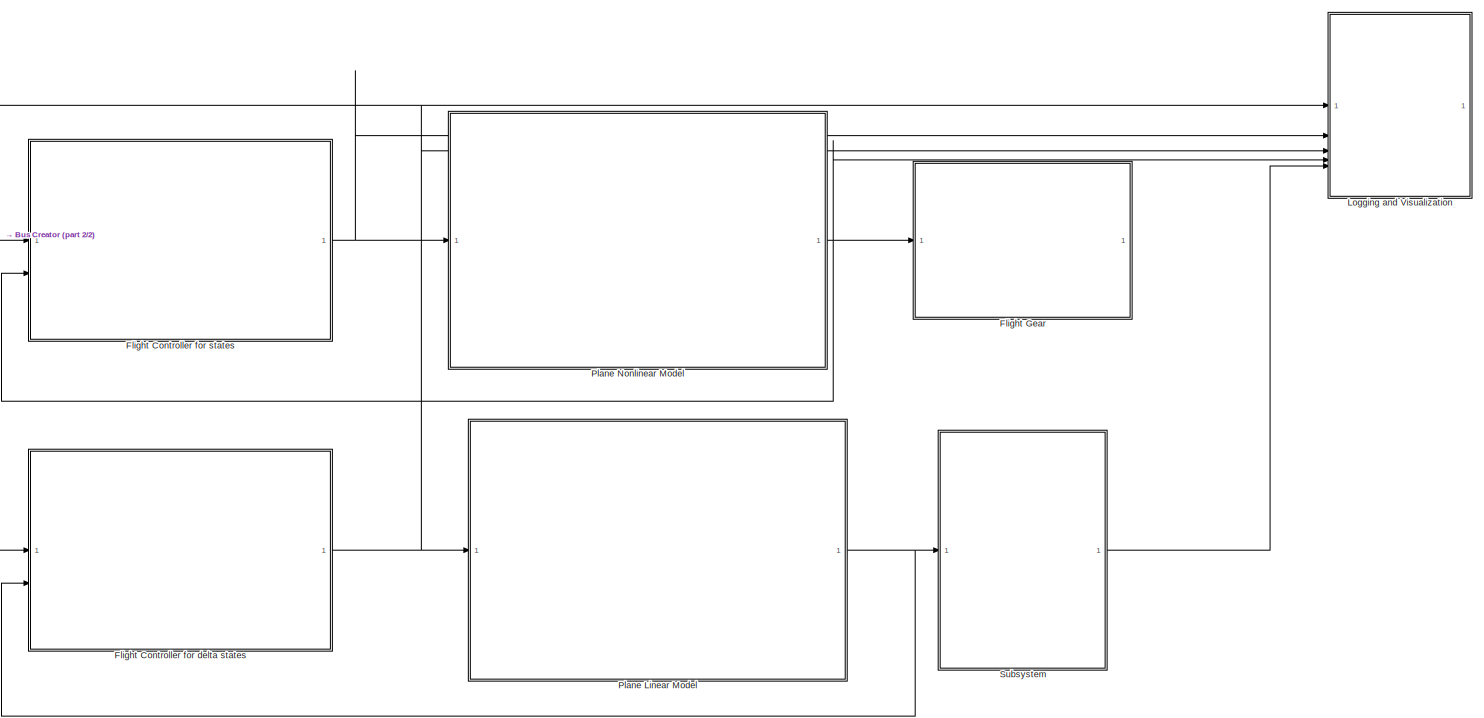
[diagram: root canvas - part 1/2, center side, full height]
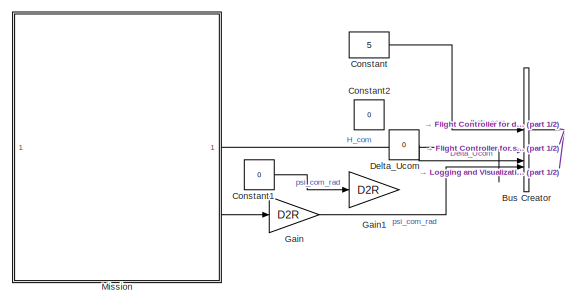
[diagram: root canvas - part 2/2, middle left region]
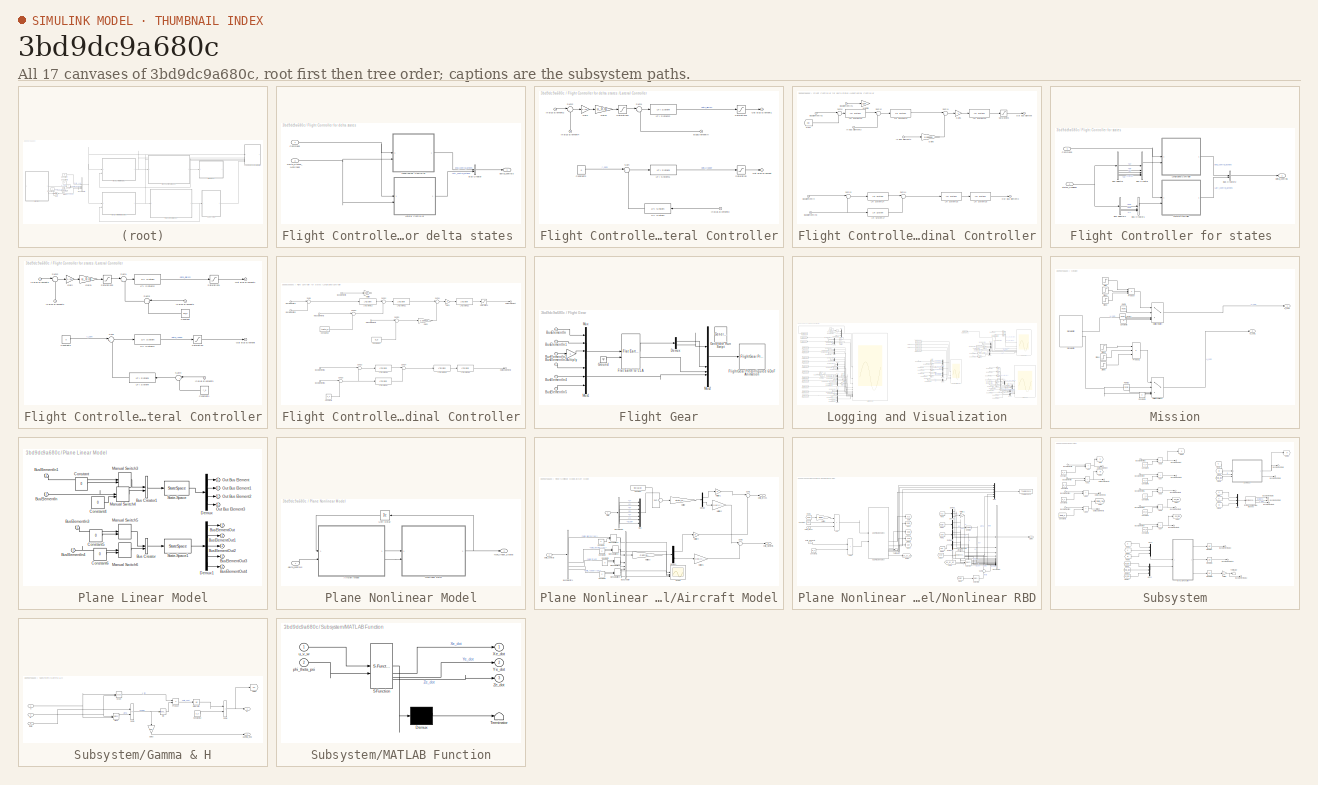
[diagram: thumbnail index - all 17 canvases of the model, root first then tree order]
MODEL slx_3bd9dc9a680c
KIND model
CONFIG AbsTol = auto
CONFIG EnableMultiTasking = off
CONFIG FixedStep = 0.01
CONFIG MaxStep = auto
CONFIG MinStep = auto
CONFIG RelTol = 1e-3
CONFIG SampleTimeConstraint = Unconstrained
CONFIG SolverName = ode4
CONFIG StartTime = 0.0
CONFIG StopTime =  1800
BLOCK [BusCreator] Bus Creator
  DisplayOption = bar
  InheritFromInputs = on
  Inputs = 4
BLOCK [Constant] Constant
  Value = 5
BLOCK [Constant] Constant1
  Value = 0
BLOCK [Constant] Constant2
  Value = 0
BLOCK [Constant] Delta_Ucom
  Value = 0
BLOCK [SubSystem] Flight Controller for delta states 
BLOCK [BusCreator] Flight Controller for delta states /Bus Creator
  DisplayOption = bar
  InheritFromInputs = on
  Inputs = 2
BLOCK [Inport] Flight Controller for delta states /Command
BLOCK [Inport] Flight Controller for delta states /Delta_States_Nonlinear
  Port = 2
BLOCK [SubSystem] Flight Controller for delta states /Lateral Controller
BLOCK [Inport] Flight Controller for delta states /Lateral Controller/BusElementIn
  NameLocation = top
  Port = 2
BLOCK [Constant] Flight Controller for delta states /Lateral Controller/Constant2
  Value = 0
BLOCK [Gain] Flight Controller for delta states /Lateral Controller/Gain
  Gain = 1./20
BLOCK [Gain] Flight Controller for delta states /Lateral Controller/Gain1
  Gain = u_0./g
BLOCK [Inport] Flight Controller for delta states /Lateral Controller/In Bus Element2
BLOCK [Inport] Flight Controller for delta states /Lateral Controller/In Bus Element3
  NameLocation = top
  Port = 2
BLOCK [Inport] Flight Controller for delta states /Lateral Controller/In Bus Element4
  NameLocation = right
  Port = 2
BLOCK [Reference] Flight Controller for delta states /Lateral Controller/LTI System  REF=cstblocks/LTI System
  NameLocation = top
  SourceBlock = cstblocks/LTI System
  SourceType = LTI Block
BLOCK [Reference] Flight Controller for delta states /Lateral Controller/LTI System1  REF=cstblocks/LTI System
  SourceBlock = cstblocks/LTI System
  SourceType = LTI Block
BLOCK [Reference] Flight Controller for delta states /Lateral Controller/LTI System2  REF=cstblocks/LTI System
  SourceBlock = cstblocks/LTI System
  SourceType = LTI Block
BLOCK [Outport] Flight Controller for delta states /Lateral Controller/Out Bus Element
BLOCK [Outport] Flight Controller for delta states /Lateral Controller/Out Bus Element1
BLOCK [Saturate] Flight Controller for delta states /Lateral Controller/Saturation
  LowerLimit = -15*pi/180
  UpperLimit = 15*pi/180
BLOCK [Saturate] Flight Controller for delta states /Lateral Controller/Saturation1
  LowerLimit = -50*pi/180
  UpperLimit = 50*pi/180
BLOCK [Saturate] Flight Controller for delta states /Lateral Controller/Saturation2
  LowerLimit = -30*pi/180
  UpperLimit = 30*pi/180
BLOCK [Sum] Flight Controller for delta states /Lateral Controller/Sum
  Inputs = |++
BLOCK [Sum] Flight Controller for delta states /Lateral Controller/Sum1
  Inputs = |+-
BLOCK [Sum] Flight Controller for delta states /Lateral Controller/Sum2
  Inputs = |+-
BLOCK [SubSystem] Flight Controller for delta states /Longitudinal Controller
BLOCK [Inport] Flight Controller for delta states /Longitudinal Controller/BusElementIn
BLOCK [Inport] Flight Controller for delta states /Longitudinal Controller/BusElementIn1
BLOCK [Inport] Flight Controller for delta states /Longitudinal Controller/BusElementIn2
BLOCK [Inport] Flight Controller for delta states /Longitudinal Controller/BusElementIn3
  Port = 2
BLOCK [From] Flight Controller for delta states /Longitudinal Controller/From
  GotoTag = HH
  TagVisibility = global
BLOCK [Gain] Flight Controller for delta states /Longitudinal Controller/Gain1
  Gain = -1
BLOCK [Gain] Flight Controller for delta states /Longitudinal Controller/Gain5
  Gain = 0.005915
BLOCK [Inport] Flight Controller for delta states /Longitudinal Controller/In Bus Element2
  Port = 2
BLOCK [Inport] Flight Controller for delta states /Longitudinal Controller/In Bus Element3
  Port = 2
BLOCK [Reference] Flight Controller for delta states /Longitudinal Controller/LTI System11  REF=cstblocks/LTI System
  SourceBlock = cstblocks/LTI System
  SourceType = LTI Block
BLOCK [Reference] Flight Controller for delta states /Longitudinal Controller/LTI System12  REF=cstblocks/LTI System
  SourceBlock = cstblocks/LTI System
  SourceType = LTI Block
BLOCK [Reference] Flight Controller for delta states /Longitudinal Controller/LTI System13  REF=cstblocks/LTI System
  SourceBlock = cstblocks/LTI System
  SourceType = LTI Block
BLOCK [Reference] Flight Controller for delta states /Longitudinal Controller/LTI System14  REF=cstblocks/LTI System
  SourceBlock = cstblocks/LTI System
  SourceType = LTI Block
BLOCK [Reference] Flight Controller for delta states /Longitudinal Controller/LTI System15  REF=cstblocks/LTI System
  SourceBlock = cstblocks/LTI System
  SourceType = LTI Block
BLOCK [Reference] Flight Controller for delta states /Longitudinal Controller/LTI System16  REF=cstblocks/LTI System
  SourceBlock = cstblocks/LTI System
  SourceType = LTI Block
BLOCK [Reference] Flight Controller for delta states /Longitudinal Controller/LTI System17  REF=cstblocks/LTI System
  SourceBlock = cstblocks/LTI System
  SourceType = LTI Block
BLOCK [Gain] Flight Controller for delta states /Longitudinal Controller/Multiply
  Commented = on
  Gain = D2R
BLOCK [Outport] Flight Controller for delta states /Longitudinal Controller/Out Bus Element
BLOCK [Outport] Flight Controller for delta states /Longitudinal Controller/Out Bus Element2
BLOCK [Saturate] Flight Controller for delta states /Longitudinal Controller/Saturation3
  LowerLimit = -25*pi/180
  UpperLimit = 25*pi/180
BLOCK [Sum] Flight Controller for delta states /Longitudinal Controller/Sum11
  Inputs = |+-
BLOCK [Sum] Flight Controller for delta states /Longitudinal Controller/Sum12
  Inputs = |+-
BLOCK [Sum] Flight Controller for delta states /Longitudinal Controller/Sum13
  Inputs = |+-
BLOCK [Sum] Flight Controller for delta states /Longitudinal Controller/Sum14
  Inputs = |++
BLOCK [Sum] Flight Controller for delta states /Longitudinal Controller/Sum6
  Inputs = |+-
BLOCK [Outport] Flight Controller for delta states /delta_controls
BLOCK [SubSystem] Flight Controller for states 
BLOCK [BusCreator] Flight Controller for states /Bus Creator
  DisplayOption = bar
  InheritFromInputs = on
  Inputs = 5
BLOCK [BusCreator] Flight Controller for states /Bus Creator1
  DisplayOption = bar
  InheritFromInputs = on
  Inputs = 3
BLOCK [BusCreator] Flight Controller for states /Bus Creator2
  DisplayOption = bar
  InheritFromInputs = on
  Inputs = 2
BLOCK [BusSelector] Flight Controller for states /Bus Selector
  OutputSignals = u,w,q,theta,H
BLOCK [BusSelector] Flight Controller for states /Bus Selector1
  OutputSignals = phi,psi,r
BLOCK [Inport] Flight Controller for states /Command
BLOCK [SubSystem] Flight Controller for states /Lateral Controller
BLOCK [Constant] Flight Controller for states /Lateral Controller/Constant
  NameLocation = top
  Value = phi_0
BLOCK [Constant] Flight Controller for states /Lateral Controller/Constant1
  NameLocation = top
  Value = r_0
BLOCK [Constant] Flight Controller for states /Lateral Controller/Constant2
  Value = 0
BLOCK [Gain] Flight Controller for states /Lateral Controller/Gain
  Gain = 1./20
BLOCK [Gain] Flight Controller for states /Lateral Controller/Gain1
  Gain = u_0./g
BLOCK [Inport] Flight Controller for states /Lateral Controller/In Bus Element1
  NameLocation = top
  Port = 2
BLOCK [Inport] Flight Controller for states /Lateral Controller/In Bus Element2
BLOCK [Inport] Flight Controller for states /Lateral Controller/In Bus Element3
  NameLocation = top
  Port = 2
BLOCK [Inport] Flight Controller for states /Lateral Controller/In Bus Element4
  NameLocation = right
  Port = 2
BLOCK [Reference] Flight Controller for states /Lateral Controller/LTI System  REF=cstblocks/LTI System
  NameLocation = top
  SourceBlock = cstblocks/LTI System
  SourceType = LTI Block
BLOCK [Reference] Flight Controller for states /Lateral Controller/LTI System1  REF=cstblocks/LTI System
  SourceBlock = cstblocks/LTI System
  SourceType = LTI Block
BLOCK [Reference] Flight Controller for states /Lateral Controller/LTI System2  REF=cstblocks/LTI System
  SourceBlock = cstblocks/LTI System
  SourceType = LTI Block
BLOCK [Outport] Flight Controller for states /Lateral Controller/Out Bus Element
BLOCK [Outport] Flight Controller for states /Lateral Controller/Out Bus Element1
BLOCK [Saturate] Flight Controller for states /Lateral Controller/Saturation
  LowerLimit = -15*pi/180
  UpperLimit = 15*pi/180
BLOCK [Saturate] Flight Controller for states /Lateral Controller/Saturation1
  LowerLimit = -50*pi/180
  UpperLimit = 50*pi/180
BLOCK [Saturate] Flight Controller for states /Lateral Controller/Saturation2
  LowerLimit = -30*pi/180
  UpperLimit = 30*pi/180
BLOCK [Sum] Flight Controller for states /Lateral Controller/Sum
  Inputs = |++
BLOCK [Sum] Flight Controller for states /Lateral Controller/Sum1
  Inputs = |+-
BLOCK [Sum] Flight Controller for states /Lateral Controller/Sum2
  Inputs = |+-
BLOCK [Sum] Flight Controller for states /Lateral Controller/Sum3
  Inputs = |+-
  NameLocation = top
BLOCK [Sum] Flight Controller for states /Lateral Controller/Sum4
  Inputs = |+-
  NameLocation = top
BLOCK [SubSystem] Flight Controller for states /Longitudinal Controller
BLOCK [Inport] Flight Controller for states /Longitudinal Controller/BusElementIn
BLOCK [Inport] Flight Controller for states /Longitudinal Controller/BusElementIn2
BLOCK [Inport] Flight Controller for states /Longitudinal Controller/BusElementIn3
  Port = 2
BLOCK [Inport] Flight Controller for states /Longitudinal Controller/BusElementIn4
BLOCK [Inport] Flight Controller for states /Longitudinal Controller/BusElementIn5
  Port = 2
BLOCK [Constant] Flight Controller for states /Longitudinal Controller/Constant10
  Value = theta_0
BLOCK [Constant] Flight Controller for states /Longitudinal Controller/Constant11
  Value = q_0
BLOCK [Constant] Flight Controller for states /Longitudinal Controller/Constant6
  Value = u_0
BLOCK [Gain] Flight Controller for states /Longitudinal Controller/Gain1
  Gain = -1
BLOCK [Gain] Flight Controller for states /Longitudinal Controller/Gain5
  Gain = 0.005915
BLOCK [Inport] Flight Controller for states /Longitudinal Controller/In Bus Element2
  Port = 2
BLOCK [Inport] Flight Controller for states /Longitudinal Controller/In Bus Element3
  Port = 2
BLOCK [Reference] Flight Controller for states /Longitudinal Controller/LTI System11  REF=cstblocks/LTI System
  SourceBlock = cstblocks/LTI System
  SourceType = LTI Block
BLOCK [Reference] Flight Controller for states /Longitudinal Controller/LTI System12  REF=cstblocks/LTI System
  SourceBlock = cstblocks/LTI System
  SourceType = LTI Block
BLOCK [Reference] Flight Controller for states /Longitudinal Controller/LTI System13  REF=cstblocks/LTI System
  SourceBlock = cstblocks/LTI System
  SourceType = LTI Block
BLOCK [Reference] Flight Controller for states /Longitudinal Controller/LTI System14  REF=cstblocks/LTI System
  SourceBlock = cstblocks/LTI System
  SourceType = LTI Block
BLOCK [Reference] Flight Controller for states /Longitudinal Controller/LTI System15  REF=cstblocks/LTI System
  SourceBlock = cstblocks/LTI System
  SourceType = LTI Block
BLOCK [Reference] Flight Controller for states /Longitudinal Controller/LTI System16  REF=cstblocks/LTI System
  SourceBlock = cstblocks/LTI System
  SourceType = LTI Block
BLOCK [Reference] Flight Controller for states /Longitudinal Controller/LTI System17  REF=cstblocks/LTI System
  SourceBlock = cstblocks/LTI System
  SourceType = LTI Block
BLOCK [Gain] Flight Controller for states /Longitudinal Controller/Multiply
  Commented = on
  Gain = D2R
BLOCK [Outport] Flight Controller for states /Longitudinal Controller/Out Bus Element
BLOCK [Outport] Flight Controller for states /Longitudinal Controller/Out Bus Element2
BLOCK [Saturate] Flight Controller for states /Longitudinal Controller/Saturation3
  LowerLimit = -25*pi/180
  UpperLimit = 25*pi/180
BLOCK [Sum] Flight Controller for states /Longitudinal Controller/Sum10
  Inputs = |+-
BLOCK [Sum] Flight Controller for states /Longitudinal Controller/Sum11
  Inputs = |+-
BLOCK [Sum] Flight Controller for states /Longitudinal Controller/Sum12
  Inputs = |+-
BLOCK [Sum] Flight Controller for states /Longitudinal Controller/Sum13
  Inputs = |+-
BLOCK [Sum] Flight Controller for states /Longitudinal Controller/Sum14
  Inputs = |++
BLOCK [Sum] Flight Controller for states /Longitudinal Controller/Sum19
  Inputs = |+-
BLOCK [Sum] Flight Controller for states /Longitudinal Controller/Sum20
  Inputs = |+-
BLOCK [Sum] Flight Controller for states /Longitudinal Controller/Sum6
  Inputs = |+-
BLOCK [Inport] Flight Controller for states /States_Nonlinear
  Port = 2
BLOCK [Outport] Flight Controller for states /delta_controls
BLOCK [SubSystem] Flight Gear
BLOCK [Inport] Flight Gear/BusElementIn
BLOCK [Inport] Flight Gear/BusElementIn1
BLOCK [Inport] Flight Gear/BusElementIn2
BLOCK [Inport] Flight Gear/BusElementIn3
BLOCK [Inport] Flight Gear/BusElementIn4
BLOCK [Inport] Flight Gear/BusElementIn5
BLOCK [Demux] Flight Gear/Demux
  Outputs = 2
BLOCK [Reference] Flight Gear/Flat Earth to LLA  REF=aerolibtransform2/Flat Earth to LLA
  SourceBlock = aerolibtransform2/Flat Earth to LLA
  SourceType = Flat Earth to LLA
BLOCK [Reference] Flight Gear/FlightGear Preconfigured 6DoF Animation  REF=aerolibfltsims/FlightGear
Preconfigured
6DoF Animation
  SourceBlock = aerolibfltsims/FlightGear\nPreconfigured\n6DoF Animation
  SourceType = FlightGearQuick6DoFAnimation
BLOCK [Reference] Flight Gear/Generate Run Script  REF=aerolibfltsims/Generate
Run Script
  SourceBlock = aerolibfltsims/Generate\nRun Script
  SourceType = Generate FlightGear Run Script
BLOCK [Ground] Flight Gear/Ground
BLOCK [Gain] Flight Gear/Multiply
  Gain = -1
BLOCK [Mux] Flight Gear/Mux
  DisplayOption = bar
  Inputs = 3
BLOCK [Mux] Flight Gear/Mux1
  DisplayOption = bar
  Inputs = 3
BLOCK [Mux] Flight Gear/Mux2
  DisplayOption = bar
BLOCK [Gain] Gain
  Gain = D2R
BLOCK [Gain] Gain1
  Gain = D2R
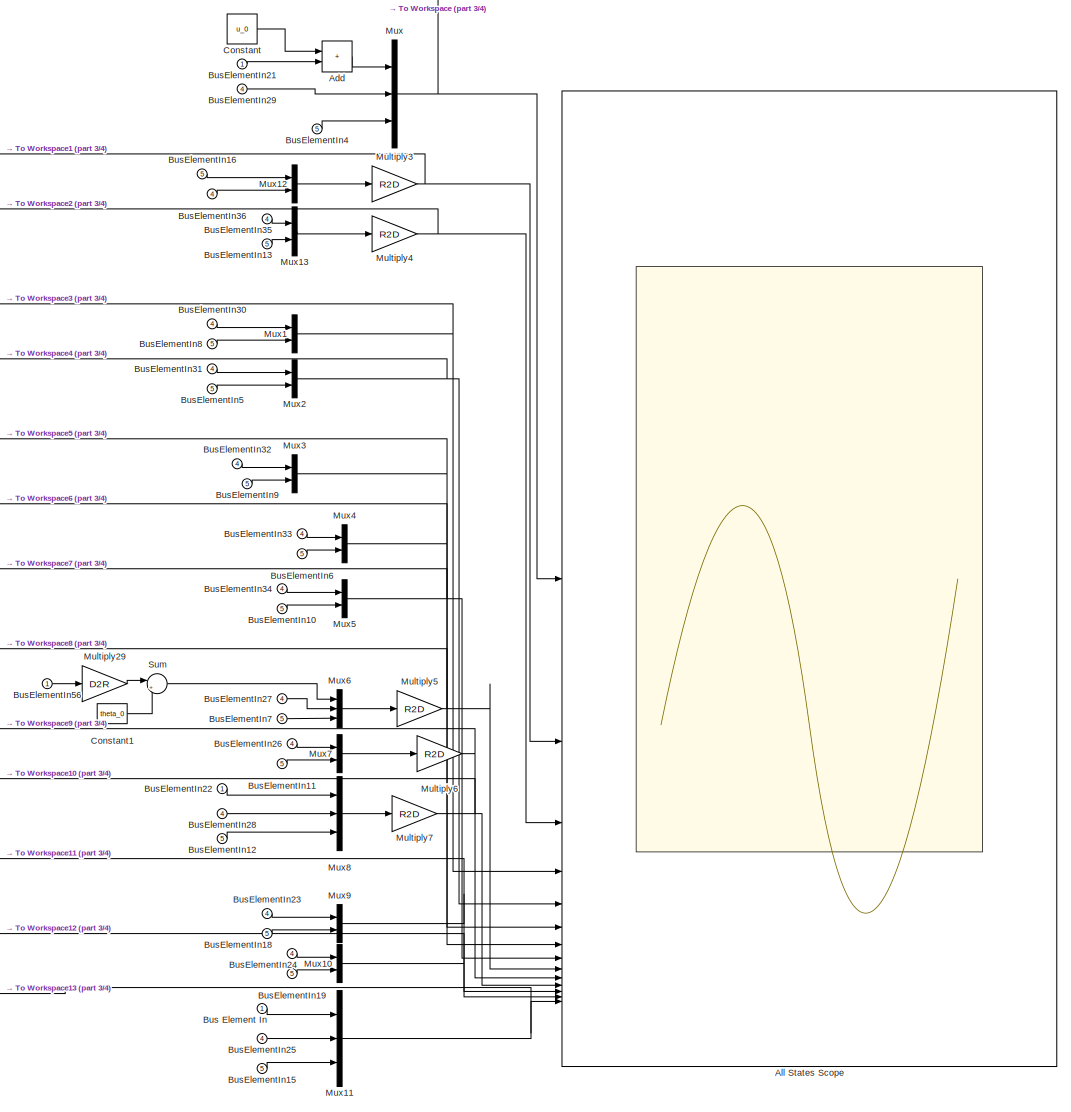
[diagram: Logging and Visualization - part 1/4, left side, full height]
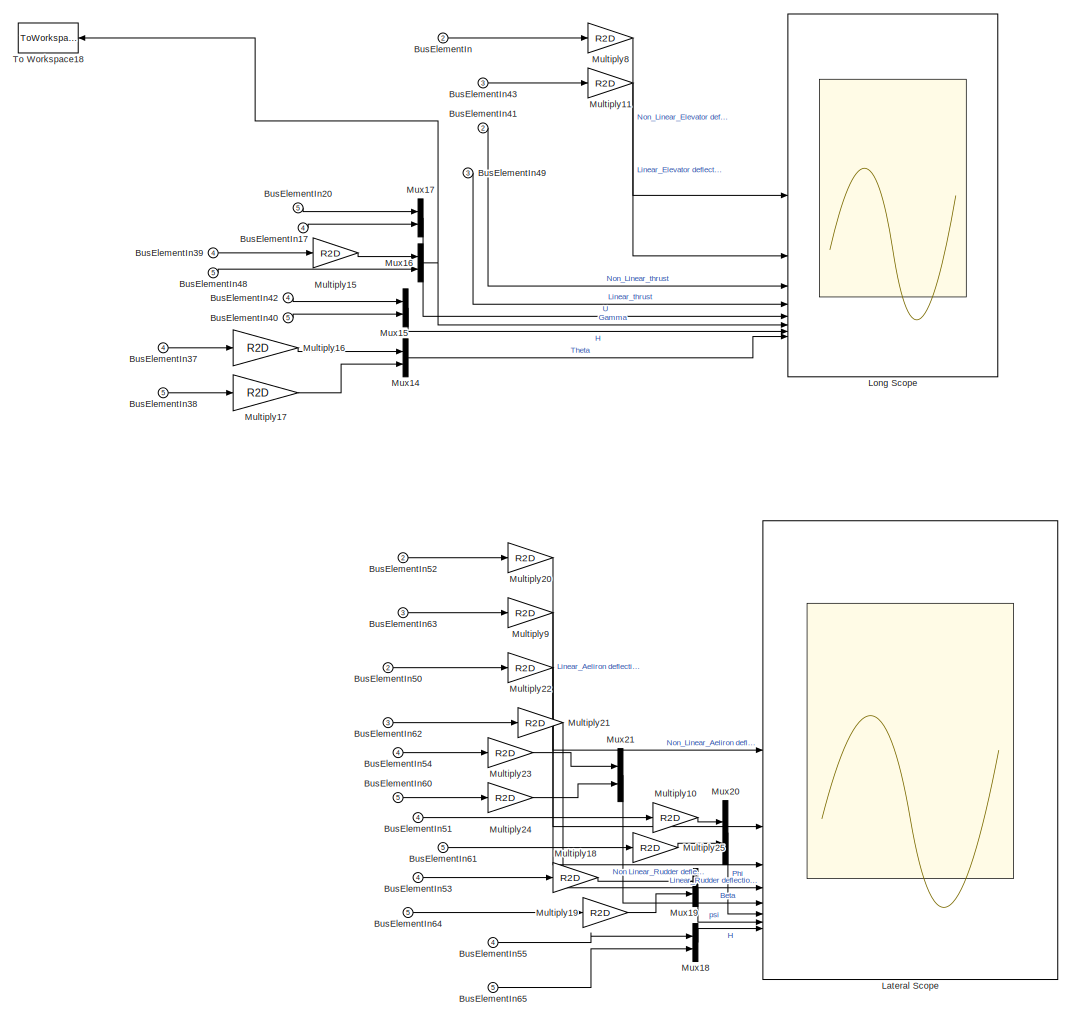
[diagram: Logging and Visualization - part 2/4, right side, full height]
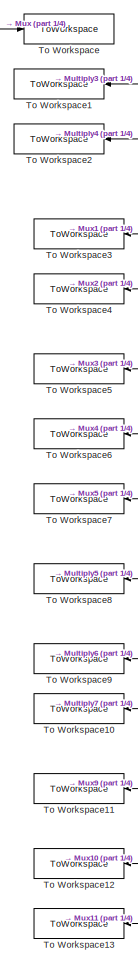
[diagram: Logging and Visualization - part 3/4, left side, full height]
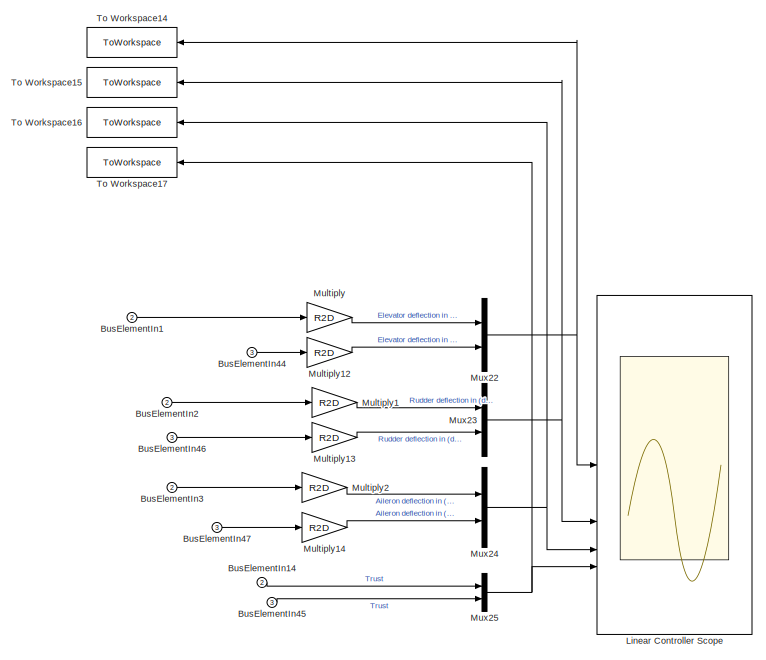
[diagram: Logging and Visualization - part 4/4, central region]
BLOCK [SubSystem] Logging and Visualization
BLOCK [Sum] Logging and Visualization/Add
  IconShape = rectangular
BLOCK [Scope] Logging and Visualization/All States Scope
  Floating = off
  NumInputPorts = 14
  ScopeSpecificationString = Simulink.scopes.TimeScopeBlockCfg('CurrentConfiguration', extmgr.ConfigurationSet(extmgr.Configuration('Core','General UI',true,'FigureColor',[1 1 1]),extmgr.Configuration('Core','Source UI',true),extmgr.Configuration('Sources','WiredSimulink',true,'DataLoggingVariableName','ScopeData6'),extmgr.Configuration('Visuals','Time Domain',true,'SerializedDisplays',{struct('MinYLimReal','465.15925','MaxYL...<+13500ch>
BLOCK [Inport] Logging and Visualization/Bus Element In
BLOCK [Inport] Logging and Visualization/BusElementIn
  Port = 2
BLOCK [Inport] Logging and Visualization/BusElementIn1
  Port = 2
BLOCK [Inport] Logging and Visualization/BusElementIn10
  Port = 5
BLOCK [Inport] Logging and Visualization/BusElementIn11
  Port = 5
BLOCK [Inport] Logging and Visualization/BusElementIn12
  Port = 5
BLOCK [Inport] Logging and Visualization/BusElementIn13
  Port = 5
BLOCK [Inport] Logging and Visualization/BusElementIn14
  Port = 2
BLOCK [Inport] Logging and Visualization/BusElementIn15
  Port = 5
BLOCK [Inport] Logging and Visualization/BusElementIn16
  Port = 5
BLOCK [Inport] Logging and Visualization/BusElementIn17
  Port = 4
BLOCK [Inport] Logging and Visualization/BusElementIn18
  Port = 5
BLOCK [Inport] Logging and Visualization/BusElementIn19
  Port = 5
BLOCK [Inport] Logging and Visualization/BusElementIn2
  Port = 2
BLOCK [Inport] Logging and Visualization/BusElementIn20
  Port = 5
BLOCK [Inport] Logging and Visualization/BusElementIn21
BLOCK [Inport] Logging and Visualization/BusElementIn22
BLOCK [Inport] Logging and Visualization/BusElementIn23
  Port = 4
BLOCK [Inport] Logging and Visualization/BusElementIn24
  Port = 4
BLOCK [Inport] Logging and Visualization/BusElementIn25
  Port = 4
BLOCK [Inport] Logging and Visualization/BusElementIn26
  Port = 4
BLOCK [Inport] Logging and Visualization/BusElementIn27
  Port = 4
BLOCK [Inport] Logging and Visualization/BusElementIn28
  Port = 4
BLOCK [Inport] Logging and Visualization/BusElementIn29
  Port = 4
BLOCK [Inport] Logging and Visualization/BusElementIn3
  Port = 2
BLOCK [Inport] Logging and Visualization/BusElementIn30
  Port = 4
BLOCK [Inport] Logging and Visualization/BusElementIn31
  Port = 4
BLOCK [Inport] Logging and Visualization/BusElementIn32
  Port = 4
BLOCK [Inport] Logging and Visualization/BusElementIn33
  Port = 4
BLOCK [Inport] Logging and Visualization/BusElementIn34
  Port = 4
BLOCK [Inport] Logging and Visualization/BusElementIn35
  Port = 4
BLOCK [Inport] Logging and Visualization/BusElementIn36
  Port = 4
BLOCK [Inport] Logging and Visualization/BusElementIn37
  Port = 4
BLOCK [Inport] Logging and Visualization/BusElementIn38
  Port = 5
BLOCK [Inport] Logging and Visualization/BusElementIn39
  Port = 4
BLOCK [Inport] Logging and Visualization/BusElementIn4
  Port = 5
BLOCK [Inport] Logging and Visualization/BusElementIn40
  Port = 5
BLOCK [Inport] Logging and Visualization/BusElementIn41
  Port = 2
BLOCK [Inport] Logging and Visualization/BusElementIn42
  Port = 4
BLOCK [Inport] Logging and Visualization/BusElementIn43
  Port = 3
BLOCK [Inport] Logging and Visualization/BusElementIn44
  Port = 3
BLOCK [Inport] Logging and Visualization/BusElementIn45
  Port = 3
BLOCK [Inport] Logging and Visualization/BusElementIn46
  Port = 3
BLOCK [Inport] Logging and Visualization/BusElementIn47
  Port = 3
BLOCK [Inport] Logging and Visualization/BusElementIn48
  Port = 5
BLOCK [Inport] Logging and Visualization/BusElementIn49
  Port = 3
BLOCK [Inport] Logging and Visualization/BusElementIn5
  Port = 5
BLOCK [Inport] Logging and Visualization/BusElementIn50
  Port = 2
BLOCK [Inport] Logging and Visualization/BusElementIn51
  Port = 4
BLOCK [Inport] Logging and Visualization/BusElementIn52
  Port = 2
BLOCK [Inport] Logging and Visualization/BusElementIn53
  Port = 4
BLOCK [Inport] Logging and Visualization/BusElementIn54
  Port = 4
BLOCK [Inport] Logging and Visualization/BusElementIn55
  Port = 4
BLOCK [Inport] Logging and Visualization/BusElementIn56
BLOCK [Inport] Logging and Visualization/BusElementIn6
  Port = 5
BLOCK [Inport] Logging and Visualization/BusElementIn60
  Port = 5
BLOCK [Inport] Logging and Visualization/BusElementIn61
  Port = 5
BLOCK [Inport] Logging and Visualization/BusElementIn62
  Port = 3
BLOCK [Inport] Logging and Visualization/BusElementIn63
  Port = 3
BLOCK [Inport] Logging and Visualization/BusElementIn64
  Port = 5
BLOCK [Inport] Logging and Visualization/BusElementIn65
  Port = 5
BLOCK [Inport] Logging and Visualization/BusElementIn7
  Port = 5
BLOCK [Inport] Logging and Visualization/BusElementIn8
  Port = 5
BLOCK [Inport] Logging and Visualization/BusElementIn9
  Port = 5
BLOCK [Constant] Logging and Visualization/Constant
  Value = u_0
BLOCK [Constant] Logging and Visualization/Constant1
  Value = theta_0
BLOCK [Scope] Logging and Visualization/Lateral Scope
  Floating = off
  NumInputPorts = 8
  ScopeSpecificationString = Simulink.scopes.TimeScopeBlockCfg('CurrentConfiguration', extmgr.ConfigurationSet(extmgr.Configuration('Core','General UI',true,'FigureColor',[1 1 1]),extmgr.Configuration('Core','Source UI',true),extmgr.Configuration('Sources','WiredSimulink',true,'DataLoggingVariableName','ScopeData3'),extmgr.Configuration('Visuals','Time Domain',true,'SerializedDisplays',{struct('MinYLimReal','-1.00000','MaxYLi...<+6897ch>
BLOCK [Scope] Logging and Visualization/Linear Controller Scope
  Floating = off
  NumInputPorts = 4
  ScopeSpecificationString = Simulink.scopes.TimeScopeBlockCfg('CurrentConfiguration', extmgr.ConfigurationSet(extmgr.Configuration('Core','General UI',true,'FigureColor',[1 1 1]),extmgr.Configuration('Core','Source UI',true),extmgr.Configuration('Sources','WiredSimulink',true,'DataLoggingVariableName','ScopeData1'),extmgr.Configuration('Visuals','Time Domain',true,'SerializedDisplays',{struct('MinYLimReal','-8.93898','MaxYLi...<+3902ch>
BLOCK [Scope] Logging and Visualization/Long Scope
  Floating = off
  NameLocation = left
  NumInputPorts = 8
  ScopeSpecificationString = Simulink.scopes.TimeScopeBlockCfg('CurrentConfiguration', extmgr.ConfigurationSet(extmgr.Configuration('Core','General UI',true,'FigureColor',[1 1 1]),extmgr.Configuration('Core','Source UI',true),extmgr.Configuration('Sources','WiredSimulink',true,'DataLoggingVariableName','ScopeData4'),extmgr.Configuration('Visuals','Time Domain',true,'SerializedDisplays',{struct('MinYLimReal','-8.94377','MaxYLi...<+6884ch>
BLOCK [Gain] Logging and Visualization/Multiply
  Gain = R2D
BLOCK [Gain] Logging and Visualization/Multiply1
  Gain = R2D
BLOCK [Gain] Logging and Visualization/Multiply10
  Gain = R2D
BLOCK [Gain] Logging and Visualization/Multiply11
  Gain = R2D
BLOCK [Gain] Logging and Visualization/Multiply12
  Gain = R2D
BLOCK [Gain] Logging and Visualization/Multiply13
  Gain = R2D
BLOCK [Gain] Logging and Visualization/Multiply14
  Gain = R2D
BLOCK [Gain] Logging and Visualization/Multiply15
  Gain = R2D
BLOCK [Gain] Logging and Visualization/Multiply16
  Gain = R2D
BLOCK [Gain] Logging and Visualization/Multiply17
  Gain = R2D
BLOCK [Gain] Logging and Visualization/Multiply18
  Gain = R2D
BLOCK [Gain] Logging and Visualization/Multiply19
  Gain = R2D
BLOCK [Gain] Logging and Visualization/Multiply2
  Gain = R2D
BLOCK [Gain] Logging and Visualization/Multiply20
  Gain = R2D
BLOCK [Gain] Logging and Visualization/Multiply21
  Gain = R2D
BLOCK [Gain] Logging and Visualization/Multiply22
  Gain = R2D
BLOCK [Gain] Logging and Visualization/Multiply23
  Gain = R2D
BLOCK [Gain] Logging and Visualization/Multiply24
  Gain = R2D
BLOCK [Gain] Logging and Visualization/Multiply25
  Gain = R2D
BLOCK [Gain] Logging and Visualization/Multiply29
  Gain = D2R
BLOCK [Gain] Logging and Visualization/Multiply3
  Gain = R2D
BLOCK [Gain] Logging and Visualization/Multiply4
  Gain = R2D
BLOCK [Gain] Logging and Visualization/Multiply5
  Gain = R2D
BLOCK [Gain] Logging and Visualization/Multiply6
  Gain = R2D
BLOCK [Gain] Logging and Visualization/Multiply7
  Gain = R2D
BLOCK [Gain] Logging and Visualization/Multiply8
  Gain = R2D
BLOCK [Gain] Logging and Visualization/Multiply9
  Gain = R2D
BLOCK [Mux] Logging and Visualization/Mux
  DisplayOption = bar
  Inputs = 3
BLOCK [Mux] Logging and Visualization/Mux1
  DisplayOption = bar
  Inputs = 2
BLOCK [Mux] Logging and Visualization/Mux10
  DisplayOption = bar
  Inputs = 2
BLOCK [Mux] Logging and Visualization/Mux11
  DisplayOption = bar
  Inputs = 3
BLOCK [Mux] Logging and Visualization/Mux12
  DisplayOption = bar
  Inputs = 2
BLOCK [Mux] Logging and Visualization/Mux13
  DisplayOption = bar
  Inputs = 2
BLOCK [Mux] Logging and Visualization/Mux14
  DisplayOption = bar
  Inputs = 2
BLOCK [Mux] Logging and Visualization/Mux15
  DisplayOption = bar
  Inputs = 2
BLOCK [Mux] Logging and Visualization/Mux16
  DisplayOption = bar
  Inputs = 2
BLOCK [Mux] Logging and Visualization/Mux17
  DisplayOption = bar
  Inputs = 2
BLOCK [Mux] Logging and Visualization/Mux18
  DisplayOption = bar
  Inputs = 2
BLOCK [Mux] Logging and Visualization/Mux19
  DisplayOption = bar
  Inputs = 2
BLOCK [Mux] Logging and Visualization/Mux2
  DisplayOption = bar
  Inputs = 2
BLOCK [Mux] Logging and Visualization/Mux20
  DisplayOption = bar
  Inputs = 2
BLOCK [Mux] Logging and Visualization/Mux21
  DisplayOption = bar
  Inputs = 2
BLOCK [Mux] Logging and Visualization/Mux22
  DisplayOption = bar
  Inputs = 2
BLOCK [Mux] Logging and Visualization/Mux23
  DisplayOption = bar
  Inputs = 2
BLOCK [Mux] Logging and Visualization/Mux24
  DisplayOption = bar
  Inputs = 2
BLOCK [Mux] Logging and Visualization/Mux25
  DisplayOption = bar
  Inputs = 2
BLOCK [Mux] Logging and Visualization/Mux3
  DisplayOption = bar
  Inputs = 2
BLOCK [Mux] Logging and Visualization/Mux4
  DisplayOption = bar
  Inputs = 2
BLOCK [Mux] Logging and Visualization/Mux5
  DisplayOption = bar
  Inputs = 2
BLOCK [Mux] Logging and Visualization/Mux6
  DisplayOption = bar
  Inputs = 3
BLOCK [Mux] Logging and Visualization/Mux7
  DisplayOption = bar
  Inputs = 2
BLOCK [Mux] Logging and Visualization/Mux8
  DisplayOption = bar
  Inputs = 3
BLOCK [Mux] Logging and Visualization/Mux9
  DisplayOption = bar
  Inputs = 2
BLOCK [Sum] Logging and Visualization/Sum
  Inputs = |++
BLOCK [ToWorkspace] Logging and Visualization/To Workspace
  FixptAsFi = on
  MaxDataPoints = inf
  SampleTime = -1
  SaveFormat = Timeseries
  VariableName = u_states
BLOCK [ToWorkspace] Logging and Visualization/To Workspace1
  FixptAsFi = on
  MaxDataPoints = inf
  NameLocation = top
  SampleTime = -1
  SaveFormat = Timeseries
  VariableName = beta_states
BLOCK [ToWorkspace] Logging and Visualization/To Workspace10
  FixptAsFi = on
  MaxDataPoints = inf
  NameLocation = top
  SampleTime = -1
  SaveFormat = Timeseries
  VariableName = psi_states
BLOCK [ToWorkspace] Logging and Visualization/To Workspace11
  FixptAsFi = on
  MaxDataPoints = inf
  NameLocation = top
  SampleTime = -1
  SaveFormat = Timeseries
  VariableName = x_states
BLOCK [ToWorkspace] Logging and Visualization/To Workspace12
  FixptAsFi = on
  MaxDataPoints = inf
  NameLocation = top
  SampleTime = -1
  SaveFormat = Timeseries
  VariableName = y_states
BLOCK [ToWorkspace] Logging and Visualization/To Workspace13
  FixptAsFi = on
  MaxDataPoints = inf
  NameLocation = top
  SampleTime = -1
  SaveFormat = Timeseries
  VariableName = H_states
BLOCK [ToWorkspace] Logging and Visualization/To Workspace14
  FixptAsFi = on
  MaxDataPoints = inf
  NameLocation = top
  SampleTime = -1
  SaveFormat = Timeseries
  VariableName = elevator_controller
BLOCK [ToWorkspace] Logging and Visualization/To Workspace15
  FixptAsFi = on
  MaxDataPoints = inf
  NameLocation = top
  SampleTime = -1
  SaveFormat = Timeseries
  VariableName = rudder_controller
BLOCK [ToWorkspace] Logging and Visualization/To Workspace16
  FixptAsFi = on
  MaxDataPoints = inf
  NameLocation = top
  SampleTime = -1
  SaveFormat = Timeseries
  VariableName = aileron_controller
BLOCK [ToWorkspace] Logging and Visualization/To Workspace17
  FixptAsFi = on
  MaxDataPoints = inf
  NameLocation = top
  SampleTime = -1
  SaveFormat = Timeseries
  VariableName = Trust_controller
BLOCK [ToWorkspace] Logging and Visualization/To Workspace18
  MaxDataPoints = inf
  NameLocation = top
  SampleTime = -1
  SaveFormat = Timeseries
  VariableName = gamma_states
BLOCK [ToWorkspace] Logging and Visualization/To Workspace2
  FixptAsFi = on
  MaxDataPoints = inf
  NameLocation = top
  SampleTime = -1
  SaveFormat = Timeseries
  VariableName = alpha_states
BLOCK [ToWorkspace] Logging and Visualization/To Workspace3
  FixptAsFi = on
  MaxDataPoints = inf
  NameLocation = top
  SampleTime = -1
  SaveFormat = Timeseries
  VariableName = v_states
BLOCK [ToWorkspace] Logging and Visualization/To Workspace4
  FixptAsFi = on
  MaxDataPoints = inf
  NameLocation = top
  SampleTime = -1
  SaveFormat = Timeseries
  VariableName = w_states
BLOCK [ToWorkspace] Logging and Visualization/To Workspace5
  FixptAsFi = on
  MaxDataPoints = inf
  NameLocation = top
  SampleTime = -1
  SaveFormat = Timeseries
  VariableName = p_states
BLOCK [ToWorkspace] Logging and Visualization/To Workspace6
  FixptAsFi = on
  MaxDataPoints = inf
  NameLocation = top
  SampleTime = -1
  SaveFormat = Timeseries
  VariableName = q_states
BLOCK [ToWorkspace] Logging and Visualization/To Workspace7
  FixptAsFi = on
  MaxDataPoints = inf
  NameLocation = top
  SampleTime = -1
  SaveFormat = Timeseries
  VariableName = r_states
BLOCK [ToWorkspace] Logging and Visualization/To Workspace8
  FixptAsFi = on
  MaxDataPoints = inf
  NameLocation = top
  SampleTime = -1
  SaveFormat = Timeseries
  VariableName = theta_states
BLOCK [ToWorkspace] Logging and Visualization/To Workspace9
  FixptAsFi = on
  MaxDataPoints = inf
  NameLocation = top
  SampleTime = -1
  SaveFormat = Timeseries
  VariableName = phi_states
BLOCK [SubSystem] Mission
BLOCK [Constant] Mission/Constant3
  Value = 0
BLOCK [Constant] Mission/Constant6
  Value = 0
BLOCK [Outport] Mission/H_com
BLOCK [Outport] Mission/H_com1
  Port = 2
BLOCK [MultiPortSwitch] Mission/Multiport Switch
  InputSameDT = off
  Inputs = 4
  SaturateOnIntegerOverflow = off
BLOCK [MultiPortSwitch] Mission/Multiport Switch1
  InputSameDT = off
  Inputs = 4
  SaturateOnIntegerOverflow = off
BLOCK [Product] Mission/Product
  Inputs = 3
BLOCK [Product] Mission/Product1
  Inputs = 3
BLOCK [Reference] Mission/Ramp  REF=simulink/Sources/Ramp
  SourceBlock = simulink/Sources/Ramp
  SourceType = Ramp
BLOCK [Reference] Mission/Ramp1  REF=simulink/Sources/Ramp
  SourceBlock = simulink/Sources/Ramp
  SourceType = Ramp
BLOCK [Reference] Mission/Ramp2  REF=simulink/Sources/Ramp
  SourceBlock = simulink/Sources/Ramp
  SourceType = Ramp
BLOCK [Reference] Mission/Signal Editor  REF=SignalEditorBlockLib/Signal Editor
  LibrarySourceBlock = simulink/Sources/Signal Editor
  SourceBlock = SignalEditorBlockLib/Signal Editor
  SourceType = SignalEditor
  UserDataPersistent = on
BLOCK [Step] Mission/Step
  After = 2
  Before = 1
  SampleTime = 0
  Time = 400
BLOCK [Step] Mission/Step1
  After = 1.5
  Before = 1
  SampleTime = 0
  Time = 1000.
BLOCK [Step] Mission/Step2
  After = 4/3
  Before = 1
  SampleTime = 0
  Time = 1400
BLOCK [Step] Mission/Step3
  After = 2
  Before = 1
  SampleTime = 0
  Time = 520
BLOCK [Step] Mission/Step4
  After = 1.5
  Before = 1
  SampleTime = 0
  Time = 760
BLOCK [Step] Mission/Step5
  After = 4/3
  Before = 1
  SampleTime = 0
  Time = 1400
BLOCK [SubSystem] Plane Linear Model
BLOCK [BusCreator] Plane Linear Model/Bus Creator
  DisplayOption = bar
  InheritFromInputs = on
  Inputs = 2
BLOCK [BusCreator] Plane Linear Model/Bus Creator1
  DisplayOption = bar
  InheritFromInputs = on
  Inputs = 2
BLOCK [Inport] Plane Linear Model/BusElementIn
BLOCK [Inport] Plane Linear Model/BusElementIn1
BLOCK [Inport] Plane Linear Model/BusElementIn3
BLOCK [Inport] Plane Linear Model/BusElementIn4
BLOCK [Outport] Plane Linear Model/BusElementOut
BLOCK [Outport] Plane Linear Model/BusElementOut1
BLOCK [Outport] Plane Linear Model/BusElementOut2
BLOCK [Outport] Plane Linear Model/BusElementOut3
BLOCK [Outport] Plane Linear Model/BusElementOut4
BLOCK [Constant] Plane Linear Model/Constant
  Value = 0
BLOCK [Constant] Plane Linear Model/Constant4
  Value = 0
BLOCK [Constant] Plane Linear Model/Constant5
  Value = 0
BLOCK [Constant] Plane Linear Model/Constant6
  Value = 0
BLOCK [Demux] Plane Linear Model/Demux
BLOCK [Demux] Plane Linear Model/Demux1
  Outputs = 5
BLOCK [ManualSwitch] Plane Linear Model/Manual Switch3
BLOCK [ManualSwitch] Plane Linear Model/Manual Switch4
BLOCK [ManualSwitch] Plane Linear Model/Manual Switch5
BLOCK [ManualSwitch] Plane Linear Model/Manual Switch6
BLOCK [Outport] Plane Linear Model/Out Bus Element
BLOCK [Outport] Plane Linear Model/Out Bus Element1
BLOCK [Outport] Plane Linear Model/Out Bus Element2
BLOCK [Outport] Plane Linear Model/Out Bus Element3
BLOCK [StateSpace] Plane Linear Model/State-Space
  A = A_longitudinal
  B = B_longitudinal
  C = C_longitudinal
  D = D_longitudinal
  InitialCondition = 0
  ParameterTunability = Unconstrained
BLOCK [StateSpace] Plane Linear Model/State-Space1
  A = A_lateral
  B = B_lateral
  C = C_lateral
  D = D_lateral
  InitialCondition = 0
  ParameterTunability = Unconstrained
BLOCK [SubSystem] Plane Nonlinear Model
BLOCK [SubSystem] Plane Nonlinear Model/Aircraft Model
BLOCK [BusCreator] Plane Nonlinear Model/Aircraft Model/Bus Creator
  DisplayOption = bar
  InheritFromInputs = on
  Inputs = 4
BLOCK [BusSelector] Plane Nonlinear Model/Aircraft Model/Bus Selector
  OutputSignals = u,v,w,p,q,r,W_dot
BLOCK [BusSelector] Plane Nonlinear Model/Aircraft Model/Bus Selector1
  OutputSignals = Latr_control_actions.delta_aileron(rad),long_control_actions.delta_elevator(rad),long_control_actions.delta_thrust,Latr_control_actions.delta_rudder(rad)
BLOCK [Constant] Plane Nonlinear Model/Aircraft Model/Constant
  Value = [s0(1:6);0]
BLOCK [Constant] Plane Nonlinear Model/Aircraft Model/Constant1
  Value = 0
BLOCK [Constant] Plane Nonlinear Model/Aircraft Model/Constant2
  Value = 0
BLOCK [Constant] Plane Nonlinear Model/Aircraft Model/Constant3
  Value = 0
BLOCK [Constant] Plane Nonlinear Model/Aircraft Model/Constant4
  Value = 0
BLOCK [Demux] Plane Nonlinear Model/Aircraft Model/Demux
  Outputs = 2
BLOCK [Demux] Plane Nonlinear Model/Aircraft Model/Demux1
  Outputs = 2
BLOCK [ManualSwitch] Plane Nonlinear Model/Aircraft Model/Manual Switch1
BLOCK [ManualSwitch] Plane Nonlinear Model/Aircraft Model/Manual Switch2
BLOCK [ManualSwitch] Plane Nonlinear Model/Aircraft Model/Manual Switch3
BLOCK [ManualSwitch] Plane Nonlinear Model/Aircraft Model/Manual Switch4
BLOCK [Gain] Plane Nonlinear Model/Aircraft Model/Multiply
  Gain = State_Matrix
  Multiplication = Matrix(K*u) (u vector)
BLOCK [Gain] Plane Nonlinear Model/Aircraft Model/Multiply1
  Gain = m
BLOCK [Gain] Plane Nonlinear Model/Aircraft Model/Multiply2
  Gain = [Ixx;Iyy;Izz]
BLOCK [Gain] Plane Nonlinear Model/Aircraft Model/Multiply3
  Gain = Control_Matrix
  Multiplication = Matrix(K*u) (u vector)
BLOCK [Gain] Plane Nonlinear Model/Aircraft Model/Multiply4
  Gain = m
BLOCK [Gain] Plane Nonlinear Model/Aircraft Model/Multiply5
  Gain = [Ixx;Iyy;Izz]
BLOCK [Mux] Plane Nonlinear Model/Aircraft Model/Mux
  DisplayOption = bar
  Inputs = 7
BLOCK [Scope] Plane Nonlinear Model/Aircraft Model/Scope
  Floating = off
  NumInputPorts = 4
  ScopeSpecificationString = Simulink.scopes.TimeScopeBlockCfg('CurrentConfiguration', extmgr.ConfigurationSet(extmgr.Configuration('Core','General UI',true),extmgr.Configuration('Core','Source UI',true),extmgr.Configuration('Sources','WiredSimulink',true,'DataLoggingVariableName','ScopeData1'),extmgr.Configuration('Visuals','Time Domain',true,'SerializedDisplays',{struct('MinYLimReal','-0.15464','MaxYLimReal','0.58865','YLab...<+3760ch>
BLOCK [Inport] Plane Nonlinear Model/Aircraft Model/State
BLOCK [Sum] Plane Nonlinear Model/Aircraft Model/Sum
  Inputs = +-
  NameLocation = top
BLOCK [Sum] Plane Nonlinear Model/Aircraft Model/Sum1
  Inputs = |++
BLOCK [Sum] Plane Nonlinear Model/Aircraft Model/Sum2
  Inputs = |++
BLOCK [Inport] Plane Nonlinear Model/Aircraft Model/delta_controls
  Port = 2
BLOCK [Outport] Plane Nonlinear Model/Aircraft Model/delta_forces
BLOCK [Outport] Plane Nonlinear Model/Aircraft Model/selta_Moments
  Port = 2
BLOCK [Outport] Plane Nonlinear Model/Non_linear_States
BLOCK [SubSystem] Plane Nonlinear Model/Nonlinear RBD
BLOCK [Reference] Plane Nonlinear Model/Nonlinear RBD/6DOF (Euler Angles)  REF=shared6dof/6DOF (Euler Angles)
  LibrarySourceBlock = aerolib6dof2/6DOF (Euler Angles)
  SourceBlock = shared6dof/6DOF (Euler Angles)
  SourceType = 6DOF EoM (Body Axis)
BLOCK [Sum] Plane Nonlinear Model/Nonlinear RBD/Add
  IconShape = rectangular
  Inputs = +++
BLOCK [Sum] Plane Nonlinear Model/Nonlinear RBD/Add1
  IconShape = rectangular
BLOCK [BusCreator] Plane Nonlinear Model/Nonlinear RBD/Bus Creator
  DisplayOption = bar
  InheritFromInputs = on
  Inputs = 17
BLOCK [Constant] Plane Nonlinear Model/Nonlinear RBD/Constant
  Value = mg0
BLOCK [Constant] Plane Nonlinear Model/Nonlinear RBD/Constant1
  Value = M_0
BLOCK [Demux] Plane Nonlinear Model/Nonlinear RBD/Demux
  Outputs = 3
BLOCK [Demux] Plane Nonlinear Model/Nonlinear RBD/Demux1
  Outputs = 3
BLOCK [Demux] Plane Nonlinear Model/Nonlinear RBD/Demux3
  Outputs = 3
BLOCK [Demux] Plane Nonlinear Model/Nonlinear RBD/Demux4
  Outputs = 3
BLOCK [From] Plane Nonlinear Model/Nonlinear RBD/From
  GotoTag = xyz
BLOCK [From] Plane Nonlinear Model/Nonlinear RBD/From1
  GotoTag = eular
BLOCK [From] Plane Nonlinear Model/Nonlinear RBD/From2
  GotoTag = uvw
BLOCK [From] Plane Nonlinear Model/Nonlinear RBD/From3
  GotoTag = pqr
BLOCK [From] Plane Nonlinear Model/Nonlinear RBD/From4
  GotoTag = uvw
BLOCK [From] Plane Nonlinear Model/Nonlinear RBD/From5
  GotoTag = ax_ay_az
BLOCK [From] Plane Nonlinear Model/Nonlinear RBD/From6
  GotoTag = DCM
BLOCK [From] Plane Nonlinear Model/Nonlinear RBD/From7
  GotoTag = eular
BLOCK [Goto] Plane Nonlinear Model/Nonlinear RBD/Goto
  GotoTag = xyz
BLOCK [Goto] Plane Nonlinear Model/Nonlinear RBD/Goto1
  GotoTag = eular
BLOCK [Goto] Plane Nonlinear Model/Nonlinear RBD/Goto2
  GotoTag = DCM
BLOCK [Goto] Plane Nonlinear Model/Nonlinear RBD/Goto3
  GotoTag = uvw
BLOCK [Goto] Plane Nonlinear Model/Nonlinear RBD/Goto4
  GotoTag = pqr
BLOCK [Goto] Plane Nonlinear Model/Nonlinear RBD/Goto5
  GotoTag = ax_ay_az
BLOCK [Reference] Plane Nonlinear Model/Nonlinear RBD/Incidence, Sideslip, & Airspeed  REF=aerolibasang/Incidence, Sideslip,
& Airspeed
  SourceBlock = aerolibasang/Incidence, Sideslip,\n& Airspeed
  SourceType = Incidence,Sideslip,&Airspeed
BLOCK [Gain] Plane Nonlinear Model/Nonlinear RBD/Multiply
  Gain = [0;0;m*g]
  Multiplication = Matrix(u*K)
BLOCK [Gain] Plane Nonlinear Model/Nonlinear RBD/Multiply1
  Gain = -1
BLOCK [Mux] Plane Nonlinear Model/Nonlinear RBD/Mux
  DisplayOption = bar
  Inputs = 6
BLOCK [Selector] Plane Nonlinear Model/Nonlinear RBD/Selector
  IndexOptions = Index vector (dialog)
  Indices = 3
  InputPortWidth = 3
  OutputSizes = 1
BLOCK [Selector] Plane Nonlinear Model/Nonlinear RBD/Selector1
  IndexOptions = Index vector (dialog)
  Indices = [2]
  InputPortWidth = 3
  OutputSizes = 1
BLOCK [Outport] Plane Nonlinear Model/Nonlinear RBD/States
BLOCK [Sum] Plane Nonlinear Model/Nonlinear RBD/Sum
  Inputs = -+
  NameLocation = top
BLOCK [Terminator] Plane Nonlinear Model/Nonlinear RBD/Terminator
BLOCK [ToWorkspace] Plane Nonlinear Model/Nonlinear RBD/To Workspace
  FixptAsFi = on
  MaxDataPoints = inf
  SampleTime = -1
  SaveFormat = Timeseries
  VariableName = simout
BLOCK [Reference] Plane Nonlinear Model/Nonlinear RBD/Unwrap  REF=dspsigops/Unwrap
  SourceBlock = dspsigops/Unwrap
  SourceType = Unwrap
  UserDataPersistent = on
BLOCK [Inport] Plane Nonlinear Model/Nonlinear RBD/delta_Moments
  Port = 2
BLOCK [Inport] Plane Nonlinear Model/Nonlinear RBD/delta_forces
BLOCK [UnitDelay] Plane Nonlinear Model/Unit Delay
  Commented = through
  HasFrameUpgradeWarning = on
  InitialCondition = so_struct
  NameLocation = top
  SampleTime = -1
BLOCK [Inport] Plane Nonlinear Model/delta_controls
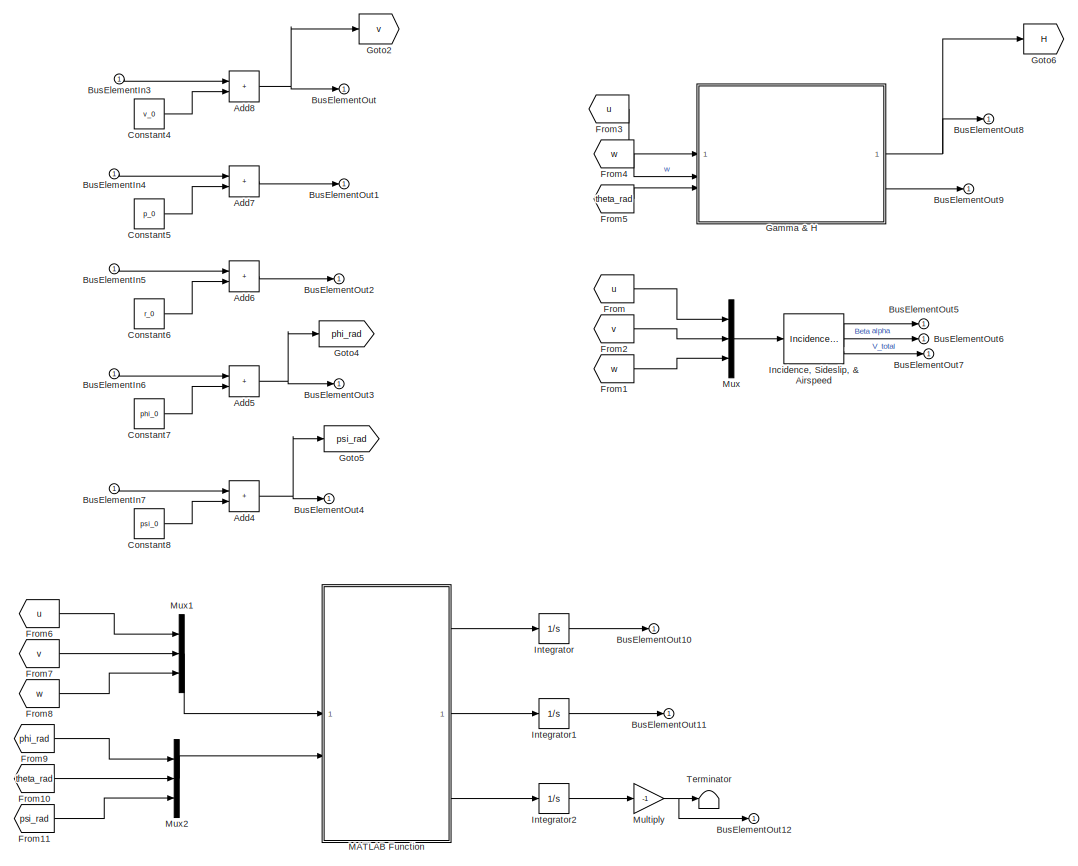
[diagram: Subsystem - part 1/2, center side, full height]
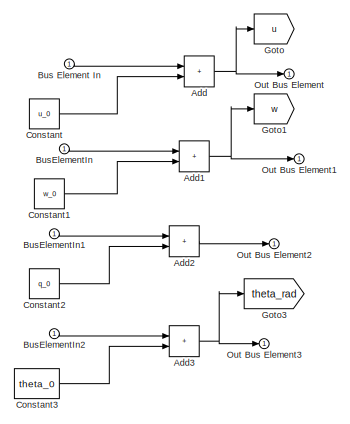
[diagram: Subsystem - part 2/2, top left region]
BLOCK [SubSystem] Subsystem
BLOCK [Sum] Subsystem/Add
  IconShape = rectangular
BLOCK [Sum] Subsystem/Add1
  IconShape = rectangular
BLOCK [Sum] Subsystem/Add2
  IconShape = rectangular
BLOCK [Sum] Subsystem/Add3
  IconShape = rectangular
BLOCK [Sum] Subsystem/Add4
  IconShape = rectangular
BLOCK [Sum] Subsystem/Add5
  IconShape = rectangular
BLOCK [Sum] Subsystem/Add6
  IconShape = rectangular
BLOCK [Sum] Subsystem/Add7
  IconShape = rectangular
BLOCK [Sum] Subsystem/Add8
  IconShape = rectangular
BLOCK [Inport] Subsystem/Bus Element In
BLOCK [Inport] Subsystem/BusElementIn
BLOCK [Inport] Subsystem/BusElementIn1
BLOCK [Inport] Subsystem/BusElementIn2
BLOCK [Inport] Subsystem/BusElementIn3
BLOCK [Inport] Subsystem/BusElementIn4
BLOCK [Inport] Subsystem/BusElementIn5
BLOCK [Inport] Subsystem/BusElementIn6
BLOCK [Inport] Subsystem/BusElementIn7
BLOCK [Outport] Subsystem/BusElementOut
BLOCK [Outport] Subsystem/BusElementOut1
BLOCK [Outport] Subsystem/BusElementOut10
BLOCK [Outport] Subsystem/BusElementOut11
BLOCK [Outport] Subsystem/BusElementOut12
BLOCK [Outport] Subsystem/BusElementOut2
BLOCK [Outport] Subsystem/BusElementOut3
BLOCK [Outport] Subsystem/BusElementOut4
BLOCK [Outport] Subsystem/BusElementOut5
BLOCK [Outport] Subsystem/BusElementOut6
BLOCK [Outport] Subsystem/BusElementOut7
BLOCK [Outport] Subsystem/BusElementOut8
BLOCK [Outport] Subsystem/BusElementOut9
BLOCK [Constant] Subsystem/Constant
  Value = u_0
BLOCK [Constant] Subsystem/Constant1
  Value = w_0
BLOCK [Constant] Subsystem/Constant2
  Value = q_0
BLOCK [Constant] Subsystem/Constant3
  Value = theta_0
BLOCK [Constant] Subsystem/Constant4
  Value = v_0
BLOCK [Constant] Subsystem/Constant5
  Value = p_0
BLOCK [Constant] Subsystem/Constant6
  Value = r_0
BLOCK [Constant] Subsystem/Constant7
  Value = phi_0
BLOCK [Constant] Subsystem/Constant8
  Value = psi_0
BLOCK [From] Subsystem/From
  GotoTag = u
BLOCK [From] Subsystem/From1
  GotoTag = w
BLOCK [From] Subsystem/From10
  GotoTag = theta_rad
BLOCK [From] Subsystem/From11
  GotoTag = psi_rad
BLOCK [From] Subsystem/From2
  GotoTag = v
BLOCK [From] Subsystem/From3
  GotoTag = u
BLOCK [From] Subsystem/From4
  GotoTag = w
BLOCK [From] Subsystem/From5
  GotoTag = theta_rad
BLOCK [From] Subsystem/From6
  GotoTag = u
BLOCK [From] Subsystem/From7
  GotoTag = v
BLOCK [From] Subsystem/From8
  GotoTag = w
BLOCK [From] Subsystem/From9
  GotoTag = phi_rad
BLOCK [SubSystem] Subsystem/Gamma & H
BLOCK [Trigonometry] Subsystem/Gamma & H/Atan2
  Operator = atan2
BLOCK [Constant] Subsystem/Gamma & H/Constant12
  Value = -z_0
BLOCK [Gain] Subsystem/Gamma & H/Gain3
  Gain = R2D
  NameLocation = left
BLOCK [Goto] Subsystem/Gamma & H/Goto6
  GotoTag = HH
  TagVisibility = global
BLOCK [Outport] Subsystem/Gamma & H/H
BLOCK [Math] Subsystem/Gamma & H/Hypot
  Operator = hypot
BLOCK [Integrator] Subsystem/Gamma & H/Integrator
BLOCK [Product] Subsystem/Gamma & H/Product
BLOCK [Trigonometry] Subsystem/Gamma & H/Sin
BLOCK [Sum] Subsystem/Gamma & H/Sum3
  IconShape = rectangular
  Inputs = |+-
BLOCK [Sum] Subsystem/Gamma & H/Sum4
  IconShape = rectangular
  Inputs = |++
BLOCK [Outport] Subsystem/Gamma & H/gamma_deg
  Port = 2
BLOCK [Inport] Subsystem/Gamma & H/theta
  Port = 3
BLOCK [Inport] Subsystem/Gamma & H/u
BLOCK [Inport] Subsystem/Gamma & H/w
  Port = 2
BLOCK [Goto] Subsystem/Goto
  GotoTag = u
BLOCK [Goto] Subsystem/Goto1
  GotoTag = w
BLOCK [Goto] Subsystem/Goto2
  GotoTag = v
BLOCK [Goto] Subsystem/Goto3
  GotoTag = theta_rad
BLOCK [Goto] Subsystem/Goto4
  GotoTag = phi_rad
BLOCK [Goto] Subsystem/Goto5
  GotoTag = psi_rad
BLOCK [Goto] Subsystem/Goto6
  GotoTag = H
  TagVisibility = global
BLOCK [Reference] Subsystem/Incidence, Sideslip, & Airspeed  REF=aerolibasang/Incidence, Sideslip,
& Airspeed
  SourceBlock = aerolibasang/Incidence, Sideslip,\n& Airspeed
  SourceType = Incidence,Sideslip,&Airspeed
BLOCK [Integrator] Subsystem/Integrator
BLOCK [Integrator] Subsystem/Integrator1
BLOCK [Integrator] Subsystem/Integrator2
BLOCK [SubSystem] Subsystem/MATLAB Function
  ErrorFcn = Stateflow.Translate.translate
  PermitHierarchicalResolution = ExplicitOnly
  SFBlockType = MATLAB Function
  TreatAsAtomicUnit = on
BLOCK [Demux] Subsystem/MATLAB Function/ Demux 
  Outputs = 1
BLOCK [S-Function] Subsystem/MATLAB Function/ SFunction 
  EnableBusSupport = on
  FunctionName = sf_sfun
  PortCounts = [2 4]
  SFcnIsStateOwnerBlock = off
  SFunctionDeploymentMode = off
  Tag = Stateflow S-Function 2
BLOCK [Terminator] Subsystem/MATLAB Function/ Terminator 
BLOCK [Outport] Subsystem/MATLAB Function/Xe_dot
BLOCK [Outport] Subsystem/MATLAB Function/Ye_dot
  Port = 2
BLOCK [Outport] Subsystem/MATLAB Function/Ze_dot
  Port = 3
BLOCK [Inport] Subsystem/MATLAB Function/phi_theta_psi
  Port = 2
BLOCK [Inport] Subsystem/MATLAB Function/u_v_w
BLOCK [Gain] Subsystem/Multiply
  Gain = -1
BLOCK [Mux] Subsystem/Mux
  DisplayOption = bar
  Inputs = 3
BLOCK [Mux] Subsystem/Mux1
  DisplayOption = bar
  Inputs = 3
BLOCK [Mux] Subsystem/Mux2
  DisplayOption = bar
  Inputs = 3
BLOCK [Outport] Subsystem/Out Bus Element
BLOCK [Outport] Subsystem/Out Bus Element1
BLOCK [Outport] Subsystem/Out Bus Element2
BLOCK [Outport] Subsystem/Out Bus Element3
BLOCK [Terminator] Subsystem/Terminator
NET Bus Creator:1 -> Flight Controller for delta states :1, Flight Controller for states :1, Logging and Visualization:1
LINE Constant1:1 -> Gain1:1
LINE Constant:1 -> Bus Creator:1
LINE Delta_Ucom:1 -> Bus Creator:3
LINE Flight Controller for delta states /Bus Creator:1 -> Flight Controller for delta states /delta_controls:1
NET Flight Controller for delta states /Command:1 -> Flight Controller for delta states /Lateral Controller:1, Flight Controller for delta states /Longitudinal Controller:1
NET Flight Controller for delta states /Delta_States_Nonlinear:1 -> Flight Controller for delta states /Lateral Controller:2, Flight Controller for delta states /Longitudinal Controller:2
LINE Flight Controller for delta states /Lateral Controller/BusElementIn:1 -> Flight Controller for delta states /Lateral Controller/Sum1:2
LINE Flight Controller for delta states /Lateral Controller/Constant2:1 -> Flight Controller for delta states /Lateral Controller/Sum:1
LINE Flight Controller for delta states /Lateral Controller/Gain1:1 -> Flight Controller for delta states /Lateral Controller/Saturation2:1
LINE Flight Controller for delta states /Lateral Controller/Gain:1 -> Flight Controller for delta states /Lateral Controller/Gain1:1
LINE Flight Controller for delta states /Lateral Controller/In Bus Element2:1 -> Flight Controller for delta states /Lateral Controller/Sum2:1
LINE Flight Controller for delta states /Lateral Controller/In Bus Element3:1 -> Flight Controller for delta states /Lateral Controller/LTI System:1
LINE Flight Controller for delta states /Lateral Controller/In Bus Element4:1 -> Flight Controller for delta states /Lateral Controller/Sum2:2
LINE Flight Controller for delta states /Lateral Controller/LTI System1:1 -> Flight Controller for delta states /Lateral Controller/Saturation:1
LINE Flight Controller for delta states /Lateral Controller/LTI System2:1 -> Flight Controller for delta states /Lateral Controller/Saturation1:1
LINE Flight Controller for delta states /Lateral Controller/LTI System:1 -> Flight Controller for delta states /Lateral Controller/Sum:2
LINE Flight Controller for delta states /Lateral Controller/Saturation1:1 -> Flight Controller for delta states /Lateral Controller/Out Bus Element1:1
LINE Flight Controller for delta states /Lateral Controller/Saturation2:1 -> Flight Controller for delta states /Lateral Controller/Sum1:1
LINE Flight Controller for delta states /Lateral Controller/Saturation:1 -> Flight Controller for delta states /Lateral Controller/Out Bus Element:1
LINE Flight Controller for delta states /Lateral Controller/Sum1:1 -> Flight Controller for delta states /Lateral Controller/LTI System2:1
LINE Flight Controller for delta states /Lateral Controller/Sum2:1 -> Flight Controller for delta states /Lateral Controller/Gain:1
LINE Flight Controller for delta states /Lateral Controller/Sum:1 -> Flight Controller for delta states /Lateral Controller/LTI System1:1
LINE Flight Controller for delta states /Lateral Controller:1 -> Flight Controller for delta states /Bus Creator:2
LINE Flight Controller for delta states /Longitudinal Controller/BusElementIn1:1 -> Flight Controller for delta states /Longitudinal Controller/Multiply:1
LINE Flight Controller for delta states /Longitudinal Controller/BusElementIn2:1 -> Flight Controller for delta states /Longitudinal Controller/Sum6:1
NET Flight Controller for delta states /Longitudinal Controller/BusElementIn3:1 -> Flight Controller for delta states /Longitudinal Controller/LTI System17:1, Flight Controller for delta states /Longitudinal Controller/Sum13:2
LINE Flight Controller for delta states /Longitudinal Controller/BusElementIn:1 -> Flight Controller for delta states /Longitudinal Controller/Sum13:1
LINE Flight Controller for delta states /Longitudinal Controller/From:1 -> Flight Controller for delta states /Longitudinal Controller/Sum6:2
LINE Flight Controller for delta states /Longitudinal Controller/Gain1:1 -> Flight Controller for delta states /Longitudinal Controller/LTI System12:1
LINE Flight Controller for delta states /Longitudinal Controller/Gain5:1 -> Flight Controller for delta states /Longitudinal Controller/Sum11:2
LINE Flight Controller for delta states /Longitudinal Controller/In Bus Element2:1 -> Flight Controller for delta states /Longitudinal Controller/Gain5:1
LINE Flight Controller for delta states /Longitudinal Controller/In Bus Element3:1 -> Flight Controller for delta states /Longitudinal Controller/Sum12:2
LINE Flight Controller for delta states /Longitudinal Controller/LTI System11:1 -> Flight Controller for delta states /Longitudinal Controller/Sum11:1
LINE Flight Controller for delta states /Longitudinal Controller/LTI System12:1 -> Flight Controller for delta states /Longitudinal Controller/Saturation3:1
LINE Flight Controller for delta states /Longitudinal Controller/LTI System13:1 -> Flight Controller for delta states /Longitudinal Controller/Sum12:1
LINE Flight Controller for delta states /Longitudinal Controller/LTI System14:1 -> Flight Controller for delta states /Longitudinal Controller/Sum14:1
LINE Flight Controller for delta states /Longitudinal Controller/LTI System15:1 -> Flight Controller for delta states /Longitudinal Controller/LTI System16:1
LINE Flight Controller for delta states /Longitudinal Controller/LTI System16:1 -> Flight Controller for delta states /Longitudinal Controller/Out Bus Element2:1
LINE Flight Controller for delta states /Longitudinal Controller/LTI System17:1 -> Flight Controller for delta states /Longitudinal Controller/Sum14:2
LINE Flight Controller for delta states /Longitudinal Controller/Saturation3:1 -> Flight Controller for delta states /Longitudinal Controller/Out Bus Element:1
LINE Flight Controller for delta states /Longitudinal Controller/Sum11:1 -> Flight Controller for delta states /Longitudinal Controller/Gain1:1
LINE Flight Controller for delta states /Longitudinal Controller/Sum12:1 -> Flight Controller for delta states /Longitudinal Controller/LTI System11:1
LINE Flight Controller for delta states /Longitudinal Controller/Sum13:1 -> Flight Controller for delta states /Longitudinal Controller/LTI System14:1
LINE Flight Controller for delta states /Longitudinal Controller/Sum14:1 -> Flight Controller for delta states /Longitudinal Controller/LTI System15:1
LINE Flight Controller for delta states /Longitudinal Controller/Sum6:1 -> Flight Controller for delta states /Longitudinal Controller/LTI System13:1
LINE Flight Controller for delta states /Longitudinal Controller:1 -> Flight Controller for delta states /Bus Creator:1
NET Flight Controller for delta states :1 -> Logging and Visualization:3, Plane Linear Model:1
LINE Flight Controller for states /Bus Creator1:1 -> Flight Controller for states /Lateral Controller:2
LINE Flight Controller for states /Bus Creator2:1 -> Flight Controller for states /delta_controls:1
LINE Flight Controller for states /Bus Creator:1 -> Flight Controller for states /Longitudinal Controller:2
LINE Flight Controller for states /Bus Selector1:1 -> Flight Controller for states /Bus Creator1:1
LINE Flight Controller for states /Bus Selector1:2 -> Flight Controller for states /Bus Creator1:2
LINE Flight Controller for states /Bus Selector1:3 -> Flight Controller for states /Bus Creator1:3
LINE Flight Controller for states /Bus Selector:1 -> Flight Controller for states /Bus Creator:1
LINE Flight Controller for states /Bus Selector:2 -> Flight Controller for states /Bus Creator:2
LINE Flight Controller for states /Bus Selector:3 -> Flight Controller for states /Bus Creator:3
LINE Flight Controller for states /Bus Selector:4 -> Flight Controller for states /Bus Creator:4
LINE Flight Controller for states /Bus Selector:5 -> Flight Controller for states /Bus Creator:5
NET Flight Controller for states /Command:1 -> Flight Controller for states /Lateral Controller:1, Flight Controller for states /Longitudinal Controller:1
LINE Flight Controller for states /Lateral Controller/Constant1:1 -> Flight Controller for states /Lateral Controller/Sum4:2
LINE Flight Controller for states /Lateral Controller/Constant2:1 -> Flight Controller for states /Lateral Controller/Sum:1
LINE Flight Controller for states /Lateral Controller/Constant:1 -> Flight Controller for states /Lateral Controller/Sum3:2
LINE Flight Controller for states /Lateral Controller/Gain1:1 -> Flight Controller for states /Lateral Controller/Saturation2:1
LINE Flight Controller for states /Lateral Controller/Gain:1 -> Flight Controller for states /Lateral Controller/Gain1:1
LINE Flight Controller for states /Lateral Controller/In Bus Element1:1 -> Flight Controller for states /Lateral Controller/Sum3:1
LINE Flight Controller for states /Lateral Controller/In Bus Element2:1 -> Flight Controller for states /Lateral Controller/Sum2:1
LINE Flight Controller for states /Lateral Controller/In Bus Element3:1 -> Flight Controller for states /Lateral Controller/Sum4:1
LINE Flight Controller for states /Lateral Controller/In Bus Element4:1 -> Flight Controller for states /Lateral Controller/Sum2:2
LINE Flight Controller for states /Lateral Controller/LTI System1:1 -> Flight Controller for states /Lateral Controller/Saturation:1
LINE Flight Controller for states /Lateral Controller/LTI System2:1 -> Flight Controller for states /Lateral Controller/Saturation1:1
LINE Flight Controller for states /Lateral Controller/LTI System:1 -> Flight Controller for states /Lateral Controller/Sum:2
LINE Flight Controller for states /Lateral Controller/Saturation1:1 -> Flight Controller for states /Lateral Controller/Out Bus Element1:1
LINE Flight Controller for states /Lateral Controller/Saturation2:1 -> Flight Controller for states /Lateral Controller/Sum1:1
LINE Flight Controller for states /Lateral Controller/Saturation:1 -> Flight Controller for states /Lateral Controller/Out Bus Element:1
LINE Flight Controller for states /Lateral Controller/Sum1:1 -> Flight Controller for states /Lateral Controller/LTI System2:1
LINE Flight Controller for states /Lateral Controller/Sum2:1 -> Flight Controller for states /Lateral Controller/Gain:1
LINE Flight Controller for states /Lateral Controller/Sum3:1 -> Flight Controller for states /Lateral Controller/Sum1:2
LINE Flight Controller for states /Lateral Controller/Sum4:1 -> Flight Controller for states /Lateral Controller/LTI System:1
LINE Flight Controller for states /Lateral Controller/Sum:1 -> Flight Controller for states /Lateral Controller/LTI System1:1
LINE Flight Controller for states /Lateral Controller:1 -> Flight Controller for states /Bus Creator2:2
LINE Flight Controller for states /Longitudinal Controller/BusElementIn2:1 -> Flight Controller for states /Longitudinal Controller/Sum13:1
LINE Flight Controller for states /Longitudinal Controller/BusElementIn3:1 -> Flight Controller for states /Longitudinal Controller/Sum10:1
LINE Flight Controller for states /Longitudinal Controller/BusElementIn4:1 -> Flight Controller for states /Longitudinal Controller/Sum6:1
LINE Flight Controller for states /Longitudinal Controller/BusElementIn5:1 -> Flight Controller for states /Longitudinal Controller/Sum6:2
LINE Flight Controller for states /Longitudinal Controller/BusElementIn:1 -> Flight Controller for states /Longitudinal Controller/Multiply:1
LINE Flight Controller for states /Longitudinal Controller/Constant10:1 -> Flight Controller for states /Longitudinal Controller/Sum19:2
LINE Flight Controller for states /Longitudinal Controller/Constant11:1 -> Flight Controller for states /Longitudinal Controller/Sum20:2
LINE Flight Controller for states /Longitudinal Controller/Constant6:1 -> Flight Controller for states /Longitudinal Controller/Sum10:2
LINE Flight Controller for states /Longitudinal Controller/Gain1:1 -> Flight Controller for states /Longitudinal Controller/LTI System12:1
LINE Flight Controller for states /Longitudinal Controller/Gain5:1 -> Flight Controller for states /Longitudinal Controller/Sum11:2
LINE Flight Controller for states /Longitudinal Controller/In Bus Element2:1 -> Flight Controller for states /Longitudinal Controller/Sum20:1
LINE Flight Controller for states /Longitudinal Controller/In Bus Element3:1 -> Flight Controller for states /Longitudinal Controller/Sum19:1
LINE Flight Controller for states /Longitudinal Controller/LTI System11:1 -> Flight Controller for states /Longitudinal Controller/Sum11:1
LINE Flight Controller for states /Longitudinal Controller/LTI System12:1 -> Flight Controller for states /Longitudinal Controller/Saturation3:1
LINE Flight Controller for states /Longitudinal Controller/LTI System13:1 -> Flight Controller for states /Longitudinal Controller/Sum12:1
LINE Flight Controller for states /Longitudinal Controller/LTI System14:1 -> Flight Controller for states /Longitudinal Controller/Sum14:1
LINE Flight Controller for states /Longitudinal Controller/LTI System15:1 -> Flight Controller for states /Longitudinal Controller/LTI System16:1
LINE Flight Controller for states /Longitudinal Controller/LTI System16:1 -> Flight Controller for states /Longitudinal Controller/Out Bus Element2:1
LINE Flight Controller for states /Longitudinal Controller/LTI System17:1 -> Flight Controller for states /Longitudinal Controller/Sum14:2
LINE Flight Controller for states /Longitudinal Controller/Saturation3:1 -> Flight Controller for states /Longitudinal Controller/Out Bus Element:1
NET Flight Controller for states /Longitudinal Controller/Sum10:1 -> Flight Controller for states /Longitudinal Controller/LTI System17:1, Flight Controller for states /Longitudinal Controller/Sum13:2
LINE Flight Controller for states /Longitudinal Controller/Sum11:1 -> Flight Controller for states /Longitudinal Controller/Gain1:1
LINE Flight Controller for states /Longitudinal Controller/Sum12:1 -> Flight Controller for states /Longitudinal Controller/LTI System11:1
LINE Flight Controller for states /Longitudinal Controller/Sum13:1 -> Flight Controller for states /Longitudinal Controller/LTI System14:1
LINE Flight Controller for states /Longitudinal Controller/Sum14:1 -> Flight Controller for states /Longitudinal Controller/LTI System15:1
LINE Flight Controller for states /Longitudinal Controller/Sum19:1 -> Flight Controller for states /Longitudinal Controller/Sum12:2
LINE Flight Controller for states /Longitudinal Controller/Sum20:1 -> Flight Controller for states /Longitudinal Controller/Gain5:1
LINE Flight Controller for states /Longitudinal Controller/Sum6:1 -> Flight Controller for states /Longitudinal Controller/LTI System13:1
LINE Flight Controller for states /Longitudinal Controller:1 -> Flight Controller for states /Bus Creator2:1
NET Flight Controller for states /States_Nonlinear:1 -> Flight Controller for states /Bus Selector1:1, Flight Controller for states /Bus Selector:1
NET Flight Controller for states :1 -> Logging and Visualization:2, Plane Nonlinear Model:1
LINE Flight Gear/BusElementIn1:1 -> Flight Gear/Mux:2
LINE Flight Gear/BusElementIn2:1 -> Flight Gear/Multiply:1
LINE Flight Gear/BusElementIn3:1 -> Flight Gear/Mux1:1
LINE Flight Gear/BusElementIn4:1 -> Flight Gear/Mux1:2
LINE Flight Gear/BusElementIn5:1 -> Flight Gear/Mux1:3
LINE Flight Gear/BusElementIn:1 -> Flight Gear/Mux:1
LINE Flight Gear/Demux:1 -> Flight Gear/Mux2:2
LINE Flight Gear/Demux:2 -> Flight Gear/Mux2:1
LINE Flight Gear/Flat Earth to LLA:1 -> Flight Gear/Demux:1
LINE Flight Gear/Flat Earth to LLA:2 -> Flight Gear/Mux2:3
LINE Flight Gear/Ground:1 -> Flight Gear/Flat Earth to LLA:2
LINE Flight Gear/Multiply:1 -> Flight Gear/Mux:3
LINE Flight Gear/Mux1:1 -> Flight Gear/Mux2:4
LINE Flight Gear/Mux2:1 -> Flight Gear/FlightGear Preconfigured 6DoF Animation:1
LINE Flight Gear/Mux:1 -> Flight Gear/Flat Earth to LLA:1
LINE Gain:1 -> Bus Creator:4
LINE Logging and Visualization/Add:1 -> Logging and Visualization/Mux:1
LINE Logging and Visualization/Bus Element In:1 -> Logging and Visualization/Mux11:1
LINE Logging and Visualization/BusElementIn10:1 -> Logging and Visualization/Mux5:2
LINE Logging and Visualization/BusElementIn11:1 -> Logging and Visualization/Mux7:2
LINE Logging and Visualization/BusElementIn12:1 -> Logging and Visualization/Mux8:3
LINE Logging and Visualization/BusElementIn13:1 -> Logging and Visualization/Mux13:2
LINE Logging and Visualization/BusElementIn14:1 -> Logging and Visualization/Mux25:1
LINE Logging and Visualization/BusElementIn15:1 -> Logging and Visualization/Mux11:3
LINE Logging and Visualization/BusElementIn16:1 -> Logging and Visualization/Mux12:1
LINE Logging and Visualization/BusElementIn17:1 -> Logging and Visualization/Mux17:2
LINE Logging and Visualization/BusElementIn18:1 -> Logging and Visualization/Mux9:2
LINE Logging and Visualization/BusElementIn19:1 -> Logging and Visualization/Mux10:2
LINE Logging and Visualization/BusElementIn1:1 -> Logging and Visualization/Multiply:1
LINE Logging and Visualization/BusElementIn20:1 -> Logging and Visualization/Mux17:1
LINE Logging and Visualization/BusElementIn21:1 -> Logging and Visualization/Add:2
LINE Logging and Visualization/BusElementIn22:1 -> Logging and Visualization/Mux8:1
LINE Logging and Visualization/BusElementIn23:1 -> Logging and Visualization/Mux9:1
LINE Logging and Visualization/BusElementIn24:1 -> Logging and Visualization/Mux10:1
LINE Logging and Visualization/BusElementIn25:1 -> Logging and Visualization/Mux11:2
LINE Logging and Visualization/BusElementIn26:1 -> Logging and Visualization/Mux7:1
LINE Logging and Visualization/BusElementIn27:1 -> Logging and Visualization/Mux6:2
LINE Logging and Visualization/BusElementIn28:1 -> Logging and Visualization/Mux8:2
LINE Logging and Visualization/BusElementIn29:1 -> Logging and Visualization/Mux:2
LINE Logging and Visualization/BusElementIn2:1 -> Logging and Visualization/Multiply1:1
LINE Logging and Visualization/BusElementIn30:1 -> Logging and Visualization/Mux1:1
LINE Logging and Visualization/BusElementIn31:1 -> Logging and Visualization/Mux2:1
LINE Logging and Visualization/BusElementIn32:1 -> Logging and Visualization/Mux3:1
LINE Logging and Visualization/BusElementIn33:1 -> Logging and Visualization/Mux4:1
LINE Logging and Visualization/BusElementIn34:1 -> Logging and Visualization/Mux5:1
LINE Logging and Visualization/BusElementIn35:1 -> Logging and Visualization/Mux13:1
LINE Logging and Visualization/BusElementIn36:1 -> Logging and Visualization/Mux12:2
LINE Logging and Visualization/BusElementIn37:1 -> Logging and Visualization/Multiply16:1
LINE Logging and Visualization/BusElementIn38:1 -> Logging and Visualization/Multiply17:1
LINE Logging and Visualization/BusElementIn39:1 -> Logging and Visualization/Multiply15:1
LINE Logging and Visualization/BusElementIn3:1 -> Logging and Visualization/Multiply2:1
LINE Logging and Visualization/BusElementIn40:1 -> Logging and Visualization/Mux15:2
LINE Logging and Visualization/BusElementIn41:1 -> Logging and Visualization/Long Scope:3
LINE Logging and Visualization/BusElementIn42:1 -> Logging and Visualization/Mux15:1
LINE Logging and Visualization/BusElementIn43:1 -> Logging and Visualization/Multiply11:1
LINE Logging and Visualization/BusElementIn44:1 -> Logging and Visualization/Multiply12:1
LINE Logging and Visualization/BusElementIn45:1 -> Logging and Visualization/Mux25:2
LINE Logging and Visualization/BusElementIn46:1 -> Logging and Visualization/Multiply13:1
LINE Logging and Visualization/BusElementIn47:1 -> Logging and Visualization/Multiply14:1
LINE Logging and Visualization/BusElementIn48:1 -> Logging and Visualization/Mux16:2
LINE Logging and Visualization/BusElementIn49:1 -> Logging and Visualization/Long Scope:4
LINE Logging and Visualization/BusElementIn4:1 -> Logging and Visualization/Mux:3
LINE Logging and Visualization/BusElementIn50:1 -> Logging and Visualization/Multiply22:1
LINE Logging and Visualization/BusElementIn51:1 -> Logging and Visualization/Multiply10:1
LINE Logging and Visualization/BusElementIn52:1 -> Logging and Visualization/Multiply20:1
LINE Logging and Visualization/BusElementIn53:1 -> Logging and Visualization/Multiply18:1
LINE Logging and Visualization/BusElementIn54:1 -> Logging and Visualization/Multiply23:1
LINE Logging and Visualization/BusElementIn55:1 -> Logging and Visualization/Mux18:1
LINE Logging and Visualization/BusElementIn56:1 -> Logging and Visualization/Multiply29:1
LINE Logging and Visualization/BusElementIn5:1 -> Logging and Visualization/Mux2:2
LINE Logging and Visualization/BusElementIn60:1 -> Logging and Visualization/Multiply24:1
LINE Logging and Visualization/BusElementIn61:1 -> Logging and Visualization/Multiply25:1
LINE Logging and Visualization/BusElementIn62:1 -> Logging and Visualization/Multiply21:1
LINE Logging and Visualization/BusElementIn63:1 -> Logging and Visualization/Multiply9:1
LINE Logging and Visualization/BusElementIn64:1 -> Logging and Visualization/Multiply19:1
LINE Logging and Visualization/BusElementIn65:1 -> Logging and Visualization/Mux18:2
LINE Logging and Visualization/BusElementIn6:1 -> Logging and Visualization/Mux4:2
LINE Logging and Visualization/BusElementIn7:1 -> Logging and Visualization/Mux6:3
LINE Logging and Visualization/BusElementIn8:1 -> Logging and Visualization/Mux1:2
LINE Logging and Visualization/BusElementIn9:1 -> Logging and Visualization/Mux3:2
LINE Logging and Visualization/BusElementIn:1 -> Logging and Visualization/Multiply8:1
LINE Logging and Visualization/Constant1:1 -> Logging and Visualization/Sum:2
LINE Logging and Visualization/Constant:1 -> Logging and Visualization/Add:1
LINE Logging and Visualization/Multiply10:1 -> Logging and Visualization/Mux20:1
LINE Logging and Visualization/Multiply11:1 -> Logging and Visualization/Long Scope:2
LINE Logging and Visualization/Multiply12:1 -> Logging and Visualization/Mux22:2
LINE Logging and Visualization/Multiply13:1 -> Logging and Visualization/Mux23:2
LINE Logging and Visualization/Multiply14:1 -> Logging and Visualization/Mux24:2
LINE Logging and Visualization/Multiply15:1 -> Logging and Visualization/Mux16:1
LINE Logging and Visualization/Multiply16:1 -> Logging and Visualization/Mux14:1
LINE Logging and Visualization/Multiply17:1 -> Logging and Visualization/Mux14:2
LINE Logging and Visualization/Multiply18:1 -> Logging and Visualization/Mux19:1
LINE Logging and Visualization/Multiply19:1 -> Logging and Visualization/Mux19:2
LINE Logging and Visualization/Multiply1:1 -> Logging and Visualization/Mux23:1
LINE Logging and Visualization/Multiply20:1 -> Logging and Visualization/Lateral Scope:1
LINE Logging and Visualization/Multiply21:1 -> Logging and Visualization/Lateral Scope:4
LINE Logging and Visualization/Multiply22:1 -> Logging and Visualization/Lateral Scope:3
LINE Logging and Visualization/Multiply23:1 -> Logging and Visualization/Mux21:1
LINE Logging and Visualization/Multiply24:1 -> Logging and Visualization/Mux21:2
LINE Logging and Visualization/Multiply25:1 -> Logging and Visualization/Mux20:2
LINE Logging and Visualization/Multiply29:1 -> Logging and Visualization/Sum:1
LINE Logging and Visualization/Multiply2:1 -> Logging and Visualization/Mux24:1
NET Logging and Visualization/Multiply3:1 -> Logging and Visualization/All States Scope:2, Logging and Visualization/To Workspace1:1
NET Logging and Visualization/Multiply4:1 -> Logging and Visualization/All States Scope:3, Logging and Visualization/To Workspace2:1
NET Logging and Visualization/Multiply5:1 -> Logging and Visualization/All States Scope:9, Logging and Visualization/To Workspace8:1
NET Logging and Visualization/Multiply6:1 -> Logging and Visualization/All States Scope:10, Logging and Visualization/To Workspace9:1
NET Logging and Visualization/Multiply7:1 -> Logging and Visualization/All States Scope:11, Logging and Visualization/To Workspace10:1
LINE Logging and Visualization/Multiply8:1 -> Logging and Visualization/Long Scope:1
LINE Logging and Visualization/Multiply9:1 -> Logging and Visualization/Lateral Scope:2
LINE Logging and Visualization/Multiply:1 -> Logging and Visualization/Mux22:1
NET Logging and Visualization/Mux10:1 -> Logging and Visualization/All States Scope:13, Logging and Visualization/To Workspace12:1
NET Logging and Visualization/Mux11:1 -> Logging and Visualization/All States Scope:14, Logging and Visualization/To Workspace13:1
LINE Logging and Visualization/Mux12:1 -> Logging and Visualization/Multiply3:1
LINE Logging and Visualization/Mux13:1 -> Logging and Visualization/Multiply4:1
LINE Logging and Visualization/Mux14:1 -> Logging and Visualization/Long Scope:8
LINE Logging and Visualization/Mux15:1 -> Logging and Visualization/Long Scope:7
NET Logging and Visualization/Mux16:1 -> Logging and Visualization/Long Scope:6, Logging and Visualization/To Workspace18:1
LINE Logging and Visualization/Mux17:1 -> Logging and Visualization/Long Scope:5
LINE Logging and Visualization/Mux18:1 -> Logging and Visualization/Lateral Scope:8
LINE Logging and Visualization/Mux19:1 -> Logging and Visualization/Lateral Scope:7
NET Logging and Visualization/Mux1:1 -> Logging and Visualization/All States Scope:4, Logging and Visualization/To Workspace3:1
LINE Logging and Visualization/Mux20:1 -> Logging and Visualization/Lateral Scope:6
LINE Logging and Visualization/Mux21:1 -> Logging and Visualization/Lateral Scope:5
NET Logging and Visualization/Mux22:1 -> Logging and Visualization/Linear Controller Scope:1, Logging and Visualization/To Workspace14:1
NET Logging and Visualization/Mux23:1 -> Logging and Visualization/Linear Controller Scope:2, Logging and Visualization/To Workspace15:1
NET Logging and Visualization/Mux24:1 -> Logging and Visualization/Linear Controller Scope:3, Logging and Visualization/To Workspace16:1
NET Logging and Visualization/Mux25:1 -> Logging and Visualization/Linear Controller Scope:4, Logging and Visualization/To Workspace17:1
NET Logging and Visualization/Mux2:1 -> Logging and Visualization/All States Scope:5, Logging and Visualization/To Workspace4:1
NET Logging and Visualization/Mux3:1 -> Logging and Visualization/All States Scope:6, Logging and Visualization/To Workspace5:1
NET Logging and Visualization/Mux4:1 -> Logging and Visualization/All States Scope:7, Logging and Visualization/To Workspace6:1
NET Logging and Visualization/Mux5:1 -> Logging and Visualization/All States Scope:8, Logging and Visualization/To Workspace7:1
LINE Logging and Visualization/Mux6:1 -> Logging and Visualization/Multiply5:1
LINE Logging and Visualization/Mux7:1 -> Logging and Visualization/Multiply6:1
LINE Logging and Visualization/Mux8:1 -> Logging and Visualization/Multiply7:1
NET Logging and Visualization/Mux9:1 -> Logging and Visualization/All States Scope:12, Logging and Visualization/To Workspace11:1
NET Logging and Visualization/Mux:1 -> Logging and Visualization/All States Scope:1, Logging and Visualization/To Workspace:1
LINE Logging and Visualization/Sum:1 -> Logging and Visualization/Mux6:1
LINE Mission/Constant3:1 -> Mission/Multiport Switch1:5
LINE Mission/Constant6:1 -> Mission/Multiport Switch:5
LINE Mission/Multiport Switch1:1 -> Mission/H_com1:1
LINE Mission/Multiport Switch:1 -> Mission/H_com:1
LINE Mission/Product1:1 -> Mission/Multiport Switch1:1
LINE Mission/Product:1 -> Mission/Multiport Switch:1
LINE Mission/Ramp1:1 -> Mission/Multiport Switch:4
LINE Mission/Ramp2:1 -> Mission/Multiport Switch1:3
LINE Mission/Ramp:1 -> Mission/Multiport Switch:2
LINE Mission/Signal Editor:1 -> Mission/Multiport Switch:3
NET Mission/Signal Editor:2 -> Mission/Multiport Switch1:2, Mission/Multiport Switch1:4
LINE Mission/Step1:1 -> Mission/Product:2
LINE Mission/Step2:1 -> Mission/Product:3
LINE Mission/Step3:1 -> Mission/Product1:1
LINE Mission/Step4:1 -> Mission/Product1:2
LINE Mission/Step5:1 -> Mission/Product1:3
LINE Mission/Step:1 -> Mission/Product:1
LINE Mission:1 -> Bus Creator:2
LINE Mission:2 -> Gain:1
LINE Plane Linear Model/Bus Creator1:1 -> Plane Linear Model/State-Space:1
LINE Plane Linear Model/Bus Creator:1 -> Plane Linear Model/State-Space1:1
LINE Plane Linear Model/BusElementIn1:1 -> Plane Linear Model/Manual Switch3:1
LINE Plane Linear Model/BusElementIn3:1 -> Plane Linear Model/Manual Switch5:1
LINE Plane Linear Model/BusElementIn4:1 -> Plane Linear Model/Manual Switch6:1
LINE Plane Linear Model/BusElementIn:1 -> Plane Linear Model/Manual Switch4:1
LINE Plane Linear Model/Constant4:1 -> Plane Linear Model/Manual Switch4:2
LINE Plane Linear Model/Constant5:1 -> Plane Linear Model/Manual Switch5:2
LINE Plane Linear Model/Constant6:1 -> Plane Linear Model/Manual Switch6:2
LINE Plane Linear Model/Constant:1 -> Plane Linear Model/Manual Switch3:2
LINE Plane Linear Model/Demux1:1 -> Plane Linear Model/BusElementOut:1
LINE Plane Linear Model/Demux1:2 -> Plane Linear Model/BusElementOut1:1
LINE Plane Linear Model/Demux1:3 -> Plane Linear Model/BusElementOut2:1
LINE Plane Linear Model/Demux1:4 -> Plane Linear Model/BusElementOut3:1
LINE Plane Linear Model/Demux1:5 -> Plane Linear Model/BusElementOut4:1
LINE Plane Linear Model/Demux:1 -> Plane Linear Model/Out Bus Element:1
LINE Plane Linear Model/Demux:2 -> Plane Linear Model/Out Bus Element1:1
LINE Plane Linear Model/Demux:3 -> Plane Linear Model/Out Bus Element2:1
LINE Plane Linear Model/Demux:4 -> Plane Linear Model/Out Bus Element3:1
LINE Plane Linear Model/Manual Switch3:1 -> Plane Linear Model/Bus Creator1:1
LINE Plane Linear Model/Manual Switch4:1 -> Plane Linear Model/Bus Creator1:2
LINE Plane Linear Model/Manual Switch5:1 -> Plane Linear Model/Bus Creator:1
LINE Plane Linear Model/Manual Switch6:1 -> Plane Linear Model/Bus Creator:2
LINE Plane Linear Model/State-Space1:1 -> Plane Linear Model/Demux1:1
LINE Plane Linear Model/State-Space:1 -> Plane Linear Model/Demux:1
NET Plane Linear Model:1 -> Flight Controller for delta states :2, Subsystem:1
LINE Plane Nonlinear Model/Aircraft Model/Bus Creator:1 -> Plane Nonlinear Model/Aircraft Model/Multiply3:1
LINE Plane Nonlinear Model/Aircraft Model/Bus Selector1:1 -> Plane Nonlinear Model/Aircraft Model/Manual Switch1:1
LINE Plane Nonlinear Model/Aircraft Model/Bus Selector1:2 -> Plane Nonlinear Model/Aircraft Model/Manual Switch2:1
LINE Plane Nonlinear Model/Aircraft Model/Bus Selector1:3 -> Plane Nonlinear Model/Aircraft Model/Manual Switch3:1
LINE Plane Nonlinear Model/Aircraft Model/Bus Selector1:4 -> Plane Nonlinear Model/Aircraft Model/Manual Switch4:1
LINE Plane Nonlinear Model/Aircraft Model/Bus Selector:1 -> Plane Nonlinear Model/Aircraft Model/Mux:1
LINE Plane Nonlinear Model/Aircraft Model/Bus Selector:2 -> Plane Nonlinear Model/Aircraft Model/Mux:2
LINE Plane Nonlinear Model/Aircraft Model/Bus Selector:3 -> Plane Nonlinear Model/Aircraft Model/Mux:3
LINE Plane Nonlinear Model/Aircraft Model/Bus Selector:4 -> Plane Nonlinear Model/Aircraft Model/Mux:4
LINE Plane Nonlinear Model/Aircraft Model/Bus Selector:5 -> Plane Nonlinear Model/Aircraft Model/Mux:5
LINE Plane Nonlinear Model/Aircraft Model/Bus Selector:6 -> Plane Nonlinear Model/Aircraft Model/Mux:6
LINE Plane Nonlinear Model/Aircraft Model/Bus Selector:7 -> Plane Nonlinear Model/Aircraft Model/Mux:7
LINE Plane Nonlinear Model/Aircraft Model/Constant1:1 -> Plane Nonlinear Model/Aircraft Model/Manual Switch1:2
LINE Plane Nonlinear Model/Aircraft Model/Constant2:1 -> Plane Nonlinear Model/Aircraft Model/Manual Switch2:2
LINE Plane Nonlinear Model/Aircraft Model/Constant3:1 -> Plane Nonlinear Model/Aircraft Model/Manual Switch3:2
LINE Plane Nonlinear Model/Aircraft Model/Constant4:1 -> Plane Nonlinear Model/Aircraft Model/Manual Switch4:2
LINE Plane Nonlinear Model/Aircraft Model/Constant:1 -> Plane Nonlinear Model/Aircraft Model/Sum:2
LINE Plane Nonlinear Model/Aircraft Model/Demux1:1 -> Plane Nonlinear Model/Aircraft Model/Multiply4:1
LINE Plane Nonlinear Model/Aircraft Model/Demux1:2 -> Plane Nonlinear Model/Aircraft Model/Multiply5:1
LINE Plane Nonlinear Model/Aircraft Model/Demux:1 -> Plane Nonlinear Model/Aircraft Model/Multiply1:1
LINE Plane Nonlinear Model/Aircraft Model/Demux:2 -> Plane Nonlinear Model/Aircraft Model/Multiply2:1
NET Plane Nonlinear Model/Aircraft Model/Manual Switch1:1 -> Plane Nonlinear Model/Aircraft Model/Bus Creator:1, Plane Nonlinear Model/Aircraft Model/Scope:1
NET Plane Nonlinear Model/Aircraft Model/Manual Switch2:1 -> Plane Nonlinear Model/Aircraft Model/Bus Creator:2, Plane Nonlinear Model/Aircraft Model/Scope:2
NET Plane Nonlinear Model/Aircraft Model/Manual Switch3:1 -> Plane Nonlinear Model/Aircraft Model/Bus Creator:3, Plane Nonlinear Model/Aircraft Model/Scope:3
NET Plane Nonlinear Model/Aircraft Model/Manual Switch4:1 -> Plane Nonlinear Model/Aircraft Model/Bus Creator:4, Plane Nonlinear Model/Aircraft Model/Scope:4
LINE Plane Nonlinear Model/Aircraft Model/Multiply1:1 -> Plane Nonlinear Model/Aircraft Model/Sum1:1
LINE Plane Nonlinear Model/Aircraft Model/Multiply2:1 -> Plane Nonlinear Model/Aircraft Model/Sum2:1
LINE Plane Nonlinear Model/Aircraft Model/Multiply3:1 -> Plane Nonlinear Model/Aircraft Model/Demux1:1
LINE Plane Nonlinear Model/Aircraft Model/Multiply4:1 -> Plane Nonlinear Model/Aircraft Model/Sum1:2
LINE Plane Nonlinear Model/Aircraft Model/Multiply5:1 -> Plane Nonlinear Model/Aircraft Model/Sum2:2
LINE Plane Nonlinear Model/Aircraft Model/Multiply:1 -> Plane Nonlinear Model/Aircraft Model/Demux:1
LINE Plane Nonlinear Model/Aircraft Model/Mux:1 -> Plane Nonlinear Model/Aircraft Model/Sum:1
LINE Plane Nonlinear Model/Aircraft Model/State:1 -> Plane Nonlinear Model/Aircraft Model/Bus Selector:1
LINE Plane Nonlinear Model/Aircraft Model/Sum1:1 -> Plane Nonlinear Model/Aircraft Model/delta_forces:1
LINE Plane Nonlinear Model/Aircraft Model/Sum2:1 -> Plane Nonlinear Model/Aircraft Model/selta_Moments:1
LINE Plane Nonlinear Model/Aircraft Model/Sum:1 -> Plane Nonlinear Model/Aircraft Model/Multiply:1
LINE Plane Nonlinear Model/Aircraft Model/delta_controls:1 -> Plane Nonlinear Model/Aircraft Model/Bus Selector1:1
LINE Plane Nonlinear Model/Aircraft Model:1 -> Plane Nonlinear Model/Nonlinear RBD:1
LINE Plane Nonlinear Model/Aircraft Model:2 -> Plane Nonlinear Model/Nonlinear RBD:2
NET Plane Nonlinear Model/Nonlinear RBD/6DOF (Euler Angles):2 -> Plane Nonlinear Model/Nonlinear RBD/Goto:1, Plane Nonlinear Model/Nonlinear RBD/Mux:4
NET Plane Nonlinear Model/Nonlinear RBD/6DOF (Euler Angles):3 -> Plane Nonlinear Model/Nonlinear RBD/Goto1:1, Plane Nonlinear Model/Nonlinear RBD/Mux:3
LINE Plane Nonlinear Model/Nonlinear RBD/6DOF (Euler Angles):4 -> Plane Nonlinear Model/Nonlinear RBD/Goto2:1
NET Plane Nonlinear Model/Nonlinear RBD/6DOF (Euler Angles):5 -> Plane Nonlinear Model/Nonlinear RBD/Goto3:1, Plane Nonlinear Model/Nonlinear RBD/Mux:1
NET Plane Nonlinear Model/Nonlinear RBD/6DOF (Euler Angles):6 -> Plane Nonlinear Model/Nonlinear RBD/Goto4:1, Plane Nonlinear Model/Nonlinear RBD/Mux:2
LINE Plane Nonlinear Model/Nonlinear RBD/6DOF (Euler Angles):7 -> Plane Nonlinear Model/Nonlinear RBD/Terminator:1
LINE Plane Nonlinear Model/Nonlinear RBD/6DOF (Euler Angles):8 -> Plane Nonlinear Model/Nonlinear RBD/Goto5:1
LINE Plane Nonlinear Model/Nonlinear RBD/Add1:1 -> Plane Nonlinear Model/Nonlinear RBD/6DOF (Euler Angles):2
LINE Plane Nonlinear Model/Nonlinear RBD/Add:1 -> Plane Nonlinear Model/Nonlinear RBD/6DOF (Euler Angles):1
LINE Plane Nonlinear Model/Nonlinear RBD/Bus Creator:1 -> Plane Nonlinear Model/Nonlinear RBD/States:1
LINE Plane Nonlinear Model/Nonlinear RBD/Constant1:1 -> Plane Nonlinear Model/Nonlinear RBD/Add1:2
LINE Plane Nonlinear Model/Nonlinear RBD/Constant:1 -> Plane Nonlinear Model/Nonlinear RBD/Add:2
LINE Plane Nonlinear Model/Nonlinear RBD/Demux1:1 -> Plane Nonlinear Model/Nonlinear RBD/Bus Creator:4
LINE Plane Nonlinear Model/Nonlinear RBD/Demux1:2 -> Plane Nonlinear Model/Nonlinear RBD/Bus Creator:5
LINE Plane Nonlinear Model/Nonlinear RBD/Demux1:3 -> Plane Nonlinear Model/Nonlinear RBD/Unwrap:1
LINE Plane Nonlinear Model/Nonlinear RBD/Demux3:1 -> Plane Nonlinear Model/Nonlinear RBD/Bus Creator:7
LINE Plane Nonlinear Model/Nonlinear RBD/Demux3:2 -> Plane Nonlinear Model/Nonlinear RBD/Bus Creator:8
LINE Plane Nonlinear Model/Nonlinear RBD/Demux3:3 -> Plane Nonlinear Model/Nonlinear RBD/Bus Creator:9
LINE Plane Nonlinear Model/Nonlinear RBD/Demux4:1 -> Plane Nonlinear Model/Nonlinear RBD/Bus Creator:10
LINE Plane Nonlinear Model/Nonlinear RBD/Demux4:2 -> Plane Nonlinear Model/Nonlinear RBD/Bus Creator:11
LINE Plane Nonlinear Model/Nonlinear RBD/Demux4:3 -> Plane Nonlinear Model/Nonlinear RBD/Bus Creator:12
LINE Plane Nonlinear Model/Nonlinear RBD/Demux:1 -> Plane Nonlinear Model/Nonlinear RBD/Bus Creator:1
LINE Plane Nonlinear Model/Nonlinear RBD/Demux:2 -> Plane Nonlinear Model/Nonlinear RBD/Bus Creator:2
LINE Plane Nonlinear Model/Nonlinear RBD/Demux:3 -> Plane Nonlinear Model/Nonlinear RBD/Multiply1:1
LINE Plane Nonlinear Model/Nonlinear RBD/From1:1 -> Plane Nonlinear Model/Nonlinear RBD/Demux1:1
LINE Plane Nonlinear Model/Nonlinear RBD/From2:1 -> Plane Nonlinear Model/Nonlinear RBD/Demux3:1
LINE Plane Nonlinear Model/Nonlinear RBD/From3:1 -> Plane Nonlinear Model/Nonlinear RBD/Demux4:1
LINE Plane Nonlinear Model/Nonlinear RBD/From4:1 -> Plane Nonlinear Model/Nonlinear RBD/Incidence, Sideslip, & Airspeed:1
LINE Plane Nonlinear Model/Nonlinear RBD/From5:1 -> Plane Nonlinear Model/Nonlinear RBD/Selector:1
LINE Plane Nonlinear Model/Nonlinear RBD/From6:1 -> Plane Nonlinear Model/Nonlinear RBD/Multiply:1
LINE Plane Nonlinear Model/Nonlinear RBD/From7:1 -> Plane Nonlinear Model/Nonlinear RBD/Selector1:1
LINE Plane Nonlinear Model/Nonlinear RBD/From:1 -> Plane Nonlinear Model/Nonlinear RBD/Demux:1
NET Plane Nonlinear Model/Nonlinear RBD/Incidence, Sideslip, & Airspeed:1 -> Plane Nonlinear Model/Nonlinear RBD/Bus Creator:13, Plane Nonlinear Model/Nonlinear RBD/Mux:6, Plane Nonlinear Model/Nonlinear RBD/Sum:1
NET Plane Nonlinear Model/Nonlinear RBD/Incidence, Sideslip, & Airspeed:2 -> Plane Nonlinear Model/Nonlinear RBD/Bus Creator:14, Plane Nonlinear Model/Nonlinear RBD/Mux:5
LINE Plane Nonlinear Model/Nonlinear RBD/Incidence, Sideslip, & Airspeed:3 -> Plane Nonlinear Model/Nonlinear RBD/Bus Creator:15
LINE Plane Nonlinear Model/Nonlinear RBD/Multiply1:1 -> Plane Nonlinear Model/Nonlinear RBD/Bus Creator:3
LINE Plane Nonlinear Model/Nonlinear RBD/Multiply:1 -> Plane Nonlinear Model/Nonlinear RBD/Add:1
LINE Plane Nonlinear Model/Nonlinear RBD/Mux:1 -> Plane Nonlinear Model/Nonlinear RBD/To Workspace:1
LINE Plane Nonlinear Model/Nonlinear RBD/Selector1:1 -> Plane Nonlinear Model/Nonlinear RBD/Sum:2
LINE Plane Nonlinear Model/Nonlinear RBD/Selector:1 -> Plane Nonlinear Model/Nonlinear RBD/Bus Creator:16
LINE Plane Nonlinear Model/Nonlinear RBD/Sum:1 -> Plane Nonlinear Model/Nonlinear RBD/Bus Creator:17
LINE Plane Nonlinear Model/Nonlinear RBD/Unwrap:1 -> Plane Nonlinear Model/Nonlinear RBD/Bus Creator:6
LINE Plane Nonlinear Model/Nonlinear RBD/delta_Moments:1 -> Plane Nonlinear Model/Nonlinear RBD/Add1:1
LINE Plane Nonlinear Model/Nonlinear RBD/delta_forces:1 -> Plane Nonlinear Model/Nonlinear RBD/Add:3
NET Plane Nonlinear Model/Nonlinear RBD:1 -> Plane Nonlinear Model/Non_linear_States:1, Plane Nonlinear Model/Unit Delay:1
LINE Plane Nonlinear Model/Unit Delay:1 -> Plane Nonlinear Model/Aircraft Model:1
LINE Plane Nonlinear Model/delta_controls:1 -> Plane Nonlinear Model/Aircraft Model:2
NET Plane Nonlinear Model:1 -> Flight Controller for states :2, Flight Gear:1, Logging and Visualization:4
NET Subsystem/Add1:1 -> Subsystem/Goto1:1, Subsystem/Out Bus Element1:1
LINE Subsystem/Add2:1 -> Subsystem/Out Bus Element2:1
NET Subsystem/Add3:1 -> Subsystem/Goto3:1, Subsystem/Out Bus Element3:1
NET Subsystem/Add4:1 -> Subsystem/BusElementOut4:1, Subsystem/Goto5:1
NET Subsystem/Add5:1 -> Subsystem/BusElementOut3:1, Subsystem/Goto4:1
LINE Subsystem/Add6:1 -> Subsystem/BusElementOut2:1
LINE Subsystem/Add7:1 -> Subsystem/BusElementOut1:1
NET Subsystem/Add8:1 -> Subsystem/BusElementOut:1, Subsystem/Goto2:1
NET Subsystem/Add:1 -> Subsystem/Goto:1, Subsystem/Out Bus Element:1
LINE Subsystem/Bus Element In:1 -> Subsystem/Add:1
LINE Subsystem/BusElementIn1:1 -> Subsystem/Add2:1
LINE Subsystem/BusElementIn2:1 -> Subsystem/Add3:1
LINE Subsystem/BusElementIn3:1 -> Subsystem/Add8:1
LINE Subsystem/BusElementIn4:1 -> Subsystem/Add7:1
LINE Subsystem/BusElementIn5:1 -> Subsystem/Add6:1
LINE Subsystem/BusElementIn6:1 -> Subsystem/Add5:1
LINE Subsystem/BusElementIn7:1 -> Subsystem/Add4:1
LINE Subsystem/BusElementIn:1 -> Subsystem/Add1:1
LINE Subsystem/Constant1:1 -> Subsystem/Add1:2
LINE Subsystem/Constant2:1 -> Subsystem/Add2:2
LINE Subsystem/Constant3:1 -> Subsystem/Add3:2
LINE Subsystem/Constant4:1 -> Subsystem/Add8:2
LINE Subsystem/Constant5:1 -> Subsystem/Add7:2
LINE Subsystem/Constant6:1 -> Subsystem/Add6:2
LINE Subsystem/Constant7:1 -> Subsystem/Add5:2
LINE Subsystem/Constant8:1 -> Subsystem/Add4:2
LINE Subsystem/Constant:1 -> Subsystem/Add:2
LINE Subsystem/From10:1 -> Subsystem/Mux2:2
LINE Subsystem/From11:1 -> Subsystem/Mux2:3
LINE Subsystem/From1:1 -> Subsystem/Mux:3
LINE Subsystem/From2:1 -> Subsystem/Mux:2
LINE Subsystem/From3:1 -> Subsystem/Gamma & H:1
LINE Subsystem/From4:1 -> Subsystem/Gamma & H:2
LINE Subsystem/From5:1 -> Subsystem/Gamma & H:3
LINE Subsystem/From6:1 -> Subsystem/Mux1:1
LINE Subsystem/From7:1 -> Subsystem/Mux1:2
LINE Subsystem/From8:1 -> Subsystem/Mux1:3
LINE Subsystem/From9:1 -> Subsystem/Mux2:1
LINE Subsystem/From:1 -> Subsystem/Mux:1
LINE Subsystem/Gamma & H/Atan2:1 -> Subsystem/Gamma & H/Sum3:2
LINE Subsystem/Gamma & H/Constant12:1 -> Subsystem/Gamma & H/Sum4:2
LINE Subsystem/Gamma & H/Gain3:1 -> Subsystem/Gamma & H/gamma_deg:1
LINE Subsystem/Gamma & H/Hypot:1 -> Subsystem/Gamma & H/Product:1
LINE Subsystem/Gamma & H/Integrator:1 -> Subsystem/Gamma & H/Sum4:1
LINE Subsystem/Gamma & H/Product:1 -> Subsystem/Gamma & H/Integrator:1
LINE Subsystem/Gamma & H/Sin:1 -> Subsystem/Gamma & H/Product:2
NET Subsystem/Gamma & H/Sum3:1 -> Subsystem/Gamma & H/Gain3:1, Subsystem/Gamma & H/Sin:1
NET Subsystem/Gamma & H/Sum4:1 -> Subsystem/Gamma & H/Goto6:1, Subsystem/Gamma & H/H:1
LINE Subsystem/Gamma & H/theta:1 -> Subsystem/Gamma & H/Sum3:1
NET Subsystem/Gamma & H/u:1 -> Subsystem/Gamma & H/Atan2:2, Subsystem/Gamma & H/Hypot:1
NET Subsystem/Gamma & H/w:1 -> Subsystem/Gamma & H/Atan2:1, Subsystem/Gamma & H/Hypot:2
NET Subsystem/Gamma & H:1 -> Subsystem/BusElementOut8:1, Subsystem/Goto6:1
LINE Subsystem/Gamma & H:2 -> Subsystem/BusElementOut9:1
LINE Subsystem/Incidence, Sideslip, & Airspeed:1 -> Subsystem/BusElementOut5:1
LINE Subsystem/Incidence, Sideslip, & Airspeed:2 -> Subsystem/BusElementOut6:1
LINE Subsystem/Incidence, Sideslip, & Airspeed:3 -> Subsystem/BusElementOut7:1
LINE Subsystem/Integrator1:1 -> Subsystem/BusElementOut11:1
LINE Subsystem/Integrator2:1 -> Subsystem/Multiply:1
LINE Subsystem/Integrator:1 -> Subsystem/BusElementOut10:1
LINE Subsystem/MATLAB Function:1 -> Subsystem/Integrator:1
LINE Subsystem/MATLAB Function:2 -> Subsystem/Integrator1:1
LINE Subsystem/MATLAB Function:3 -> Subsystem/Integrator2:1
NET Subsystem/Multiply:1 -> Subsystem/BusElementOut12:1, Subsystem/Terminator:1
LINE Subsystem/Mux1:1 -> Subsystem/MATLAB Function:1
LINE Subsystem/Mux2:1 -> Subsystem/MATLAB Function:2
LINE Subsystem/Mux:1 -> Subsystem/Incidence, Sideslip, & Airspeed:1
LINE Subsystem:1 -> Logging and Visualization:5
note: NET lines group one-source signal fan-out (src -> all destinations, sorted); 1:1 wires keep LINE
CHART Subsystem/MATLAB Function states=1 transitions=1
  STATE_LABEL 'eML_blk_kernel()'
  STATE_LABEL 'SCRIPT:\nfunction [Xe_dot, Ye_dot, Ze_dot] = fcn(u_v_w, phi_theta_psi)\n    u = u_v_w(1);\n    v = u_v_w(2);\n    w = u_v_w(3);\n    phi = phi_theta_psi(1);\n    theta = phi_theta_psi(2);\n    psi = phi_theta_psi(3);\n\n    T = [\n        cos(theta)*cos(psi), sin(phi)*sin(theta)*cos(psi) - cos(phi)*sin(psi), cos(phi)*sin(theta)*cos(psi) + sin(phi)*sin(psi);\n        cos(theta)*sin(psi), sin(phi)*sin(theta)*s...<+300ch>'
CHART  states=0 transitions=0
